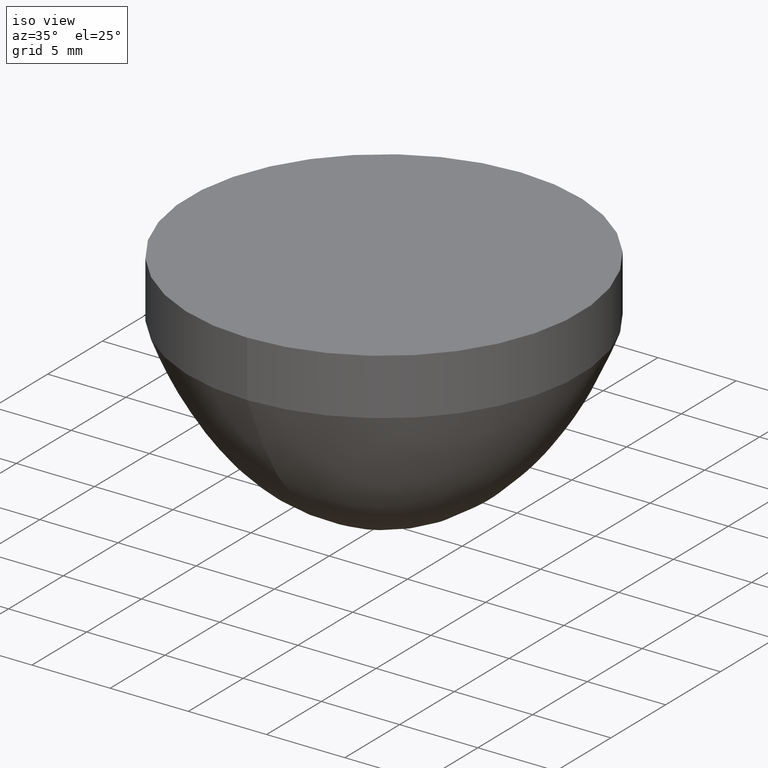
[diagram: clean part render]
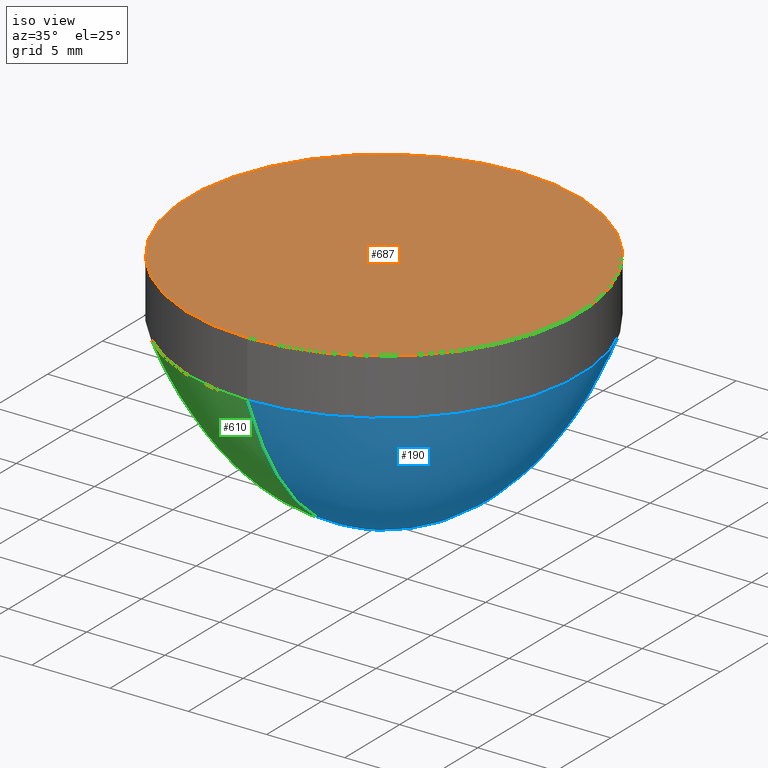
[diagram: same view with three faces highlighted in distinct colors, each labeled with its STEP entity id]
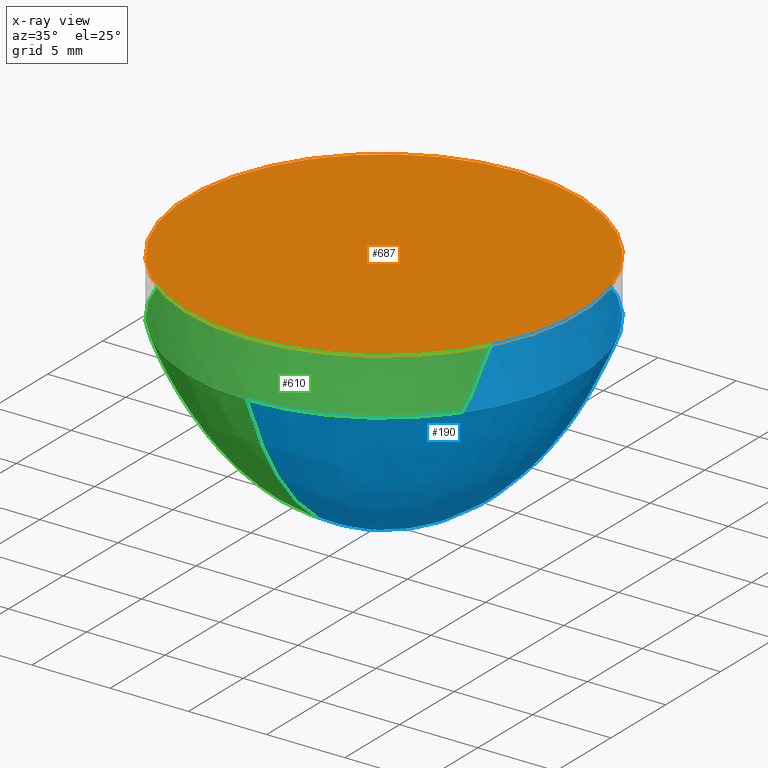
[diagram: x-ray of the same camera — body ghosted, the three highlighted faces saturated]
A machine part, iso view with three faces highlighted in distinct colors.
The next image is the same camera in x-ray (body ghosted, the three faces saturated) — at least one of them is partly hidden behind the body in this view.
Their STEP definitions:

[orange] entity #687 — the highlighted planar face has unit normal (0, 0, 1).
#10 = CARTESIAN_POINT ( 'NONE',  ( 0.000000000000000000, 0.000000000000000000, 14.90000000000000036 ) ) ;
#33 = DIRECTION ( 'NONE',  ( 0.000000000000000000, 1.000000000000000000, 0.000000000000000000 ) ) ;
#55 = AXIS2_PLACEMENT_3D ( 'NONE', #918, #166, #513 ) ;
#73 = ORIENTED_EDGE ( 'NONE', *, *, #335, .F. ) ;
#166 = DIRECTION ( 'NONE',  ( 0.000000000000000000, 0.000000000000000000, -1.000000000000000000 ) ) ;
#174 = FACE_OUTER_BOUND ( 'NONE', #828, .T. ) ;
#229 = VERTEX_POINT ( 'NONE', #934 ) ;
#270 = AXIS2_PLACEMENT_3D ( 'NONE', #862, #623, #33 ) ;
#335 = EDGE_CURVE ( 'NONE', #906, #229, #767, .T. ) ;
#399 = AXIS2_PLACEMENT_3D ( 'NONE', #10, #927, #1085 ) ;
#423 = PLANE ( 'NONE',  #399 ) ;
#513 = DIRECTION ( 'NONE',  ( 0.000000000000000000, 1.000000000000000000, 0.000000000000000000 ) ) ;
#623 = DIRECTION ( 'NONE',  ( 0.000000000000000000, 0.000000000000000000, -1.000000000000000000 ) ) ;
#666 = CIRCLE ( 'NONE', #270, 12.50000000000000000 ) ;
#681 = ORIENTED_EDGE ( 'NONE', *, *, #920, .F. ) ;
#687 = ADVANCED_FACE ( 'NONE', ( #174 ), #423, .T. ) ;
#767 = CIRCLE ( 'NONE', #55, 12.50000000000000000 ) ;
#828 = EDGE_LOOP ( 'NONE', ( #73, #681 ) ) ;
#862 = CARTESIAN_POINT ( 'NONE',  ( 0.000000000000000000, 0.000000000000000000, 14.90000000000000036 ) ) ;
#906 = VERTEX_POINT ( 'NONE', #1027 ) ;
#918 = CARTESIAN_POINT ( 'NONE',  ( 0.000000000000000000, 0.000000000000000000, 14.90000000000000036 ) ) ;
#920 = EDGE_CURVE ( 'NONE', #229, #906, #666, .T. ) ;
#927 = DIRECTION ( 'NONE',  ( 0.000000000000000000, 0.000000000000000000, 1.000000000000000000 ) ) ;
#934 = CARTESIAN_POINT ( 'NONE',  ( 1.530808498934191521E-15, -12.50000000000000000, 14.90000000000000036 ) ) ;
#1027 = CARTESIAN_POINT ( 'NONE',  ( 0.000000000000000000, 12.50000000000000000, 14.90000000000000036 ) ) ;
#1085 = DIRECTION ( 'NONE',  ( 1.000000000000000000, 0.000000000000000000, 0.000000000000000000 ) ) ;

[blue] entity #190 — the highlighted face is a freeform B-spline surface patch.
#2 = CARTESIAN_POINT ( 'NONE',  ( -1.355403358431311319E-15, -11.06770833333330017, 8.101691569829780448 ) ) ;
#3 = CARTESIAN_POINT ( 'NONE',  ( 20.05208333333339965, 10.02604166666669450, 6.330833617079840714 ) ) ;
#7 = CARTESIAN_POINT ( 'NONE',  ( 4.145939684613427030E-16, 1.692708333333329929, 0.1522185181524380038 ) ) ;
#8 = CARTESIAN_POINT ( 'NONE',  ( 2.551347498223660753E-15, 10.41666666666670160, 6.951660177979030131 ) ) ;
#12 = CARTESIAN_POINT ( 'NONE',  ( 0.000000000000000000, 0.000000000000000000, 0.000000000000000000 ) ) ;
#13 = CARTESIAN_POINT ( 'NONE',  ( 2.519455654495848970E-15, 10.28645833333330017, 6.739496539935560193 ) ) ;
#15 = CARTESIAN_POINT ( 'NONE',  ( 3.508102810057530577E-16, 1.432291666666670071, 0.1086030754907159890 ) ) ;
#16 = CARTESIAN_POINT ( 'NONE',  ( 17.44791666666666075, 8.723958333333326820, 4.567956081372781085 ) ) ;
#21 = CARTESIAN_POINT ( 'NONE',  ( -6.378368745559127230E-17, -0.5208333333333330373, 0.01354328854655280009 ) ) ;
#22 = CARTESIAN_POINT ( 'NONE',  ( 13.02083333333333748, 6.510416666666666075, 2.400284506880939528 ) ) ;
#28 = CARTESIAN_POINT ( 'NONE',  ( 11.97916666666666075, 5.989583333333327708, 2.010765930553359837 ) ) ;
#30 = CARTESIAN_POINT ( 'NONE',  ( -7.972960931948917666E-16, -6.510416666666669627, 2.400284506880939972 ) ) ;
#32 = CARTESIAN_POINT ( 'NONE',  ( -6.856746401476061403E-16, -5.598958333333329485, 1.744726139372029916 ) ) ;
#40 = CARTESIAN_POINT ( 'NONE',  ( 1.403241124023009470E-15, 5.729166666666669627, 1.830968494797829971 ) ) ;
#42 = CARTESIAN_POINT ( 'NONE',  ( 23.17708333333339610, -11.58854166666670160, 9.142246697522049104 ) ) ;
#44 = CARTESIAN_POINT ( 'NONE',  ( -2.710806716862634373E-16, -2.213541666666669627, 0.2616700155553479679 ) ) ;
#45 = CARTESIAN_POINT ( 'NONE',  ( 10.41666666666666075, 5.208333333333327708, 1.500032559886970152 ) ) ;
#51 = CARTESIAN_POINT ( 'NONE',  ( 8.854166666666660745, 4.427083333333327708, 1.071522926882350069 ) ) ;
#56 = CARTESIAN_POINT ( 'NONE',  ( -4.464858121891388568E-16, -3.645833333333330373, 0.7198431881136868604 ) ) ;
#62 = CARTESIAN_POINT ( 'NONE',  ( -2.232429060945700200E-16, -1.822916666666670071, 0.1767880958658080148 ) ) ;
#63 = CARTESIAN_POINT ( 'NONE',  ( -1.371349280295217211E-15, -11.19791666666669983, 8.350800092033551891 ) ) ;
#67 = CARTESIAN_POINT ( 'NONE',  ( 9.635416666666657193, -4.817708333333331261, 1.275870045916119855 ) ) ;
#69 = CARTESIAN_POINT ( 'NONE',  ( 0.000000000000000000, 3.255208333333329929, 0.5714833306473580121 ) ) ;
#71 = CARTESIAN_POINT ( 'NONE',  ( 5.729166666666658969, -2.864583333333330817, 0.4408698736677280072 ) ) ;
#75 = CARTESIAN_POINT ( 'NONE',  ( 0.000000000000000000, 2.213541666666669627, 0.2616700155553479679 ) ) ;
#78 = CARTESIAN_POINT ( 'NONE',  ( 1.302083333333334147, 0.6510416666666667407, 0.02167194779994750103 ) ) ;
#79 = VERTEX_POINT ( 'NONE', #557 ) ;
#81 = CARTESIAN_POINT ( 'NONE',  ( 0.000000000000000000, 5.338541666666670515, 1.579258093910859806 ) ) ;
#83 = CARTESIAN_POINT ( 'NONE',  ( 3.189184372779557206E-16, 1.302083333333329929, 0.08955723210775680398 ) ) ;
#84 = CARTESIAN_POINT ( 'NONE',  ( 22.13541666666659680, -11.06770833333330373, 8.101691569829780448 ) ) ;
#86 = CARTESIAN_POINT ( 'NONE',  ( 0.000000000000000000, 4.817708333333330373, 1.275870045916120077 ) ) ;
#88 = CARTESIAN_POINT ( 'NONE',  ( 3.385416666666659413, 1.692708333333329040, 0.1522185181524379760 ) ) ;
#89 = CARTESIAN_POINT ( 'NONE',  ( -1.355403358431311319E-15, -11.06770833333330017, 8.101691569829780448 ) ) ;
#92 = CARTESIAN_POINT ( 'NONE',  ( 0.000000000000000000, 2.473958333333330373, 0.3276472303210150039 ) ) ;
#94 = CARTESIAN_POINT ( 'NONE',  ( -1.594592186389779034E-17, -0.1302083333333330095, 0.000000000000000000 ) ) ;
#95 = CARTESIAN_POINT ( 'NONE',  ( -1.275673749111830376E-15, -10.41666666666670160, 6.951660177979030131 ) ) ;
#96 = DIRECTION ( 'NONE',  ( 0.000000000000000000, 0.000000000000000000, 1.000000000000000000 ) ) ;
#98 = CARTESIAN_POINT ( 'NONE',  ( -1.275673749111830623E-16, -1.041666666666670071, 0.05694112109779050218 ) ) ;
#99 = CARTESIAN_POINT ( 'NONE',  ( -1.227835983520136762E-15, -10.02604166666669983, 6.330833617079840714 ) ) ;
#102 = CARTESIAN_POINT ( 'NONE',  ( -1.068376764881154168E-15, -8.723958333333330373, 4.567956081372781085 ) ) ;
#104 = CARTESIAN_POINT ( 'NONE',  ( 21.61458333333339610, -10.80729166666670338, 7.622995394326639307 ) ) ;
#109 = CARTESIAN_POINT ( 'NONE',  ( 0.000000000000000000, 0.000000000000000000, 0.000000000000000000 ) ) ;
#112 = CARTESIAN_POINT ( 'NONE',  ( 13.02083333333333393, -6.510416666666671404, 2.400284506880939528 ) ) ;
#115 = CARTESIAN_POINT ( 'NONE',  ( -5.899991089642192072E-16, -4.817708333333330373, 1.275870045916120077 ) ) ;
#117 = CARTESIAN_POINT ( 'NONE',  ( 13.80208333333333748, 6.901041666666666075, 2.719964787174330212 ) ) ;
#119 = CARTESIAN_POINT ( 'NONE',  ( -1.211890061656234420E-15, -9.895833333333328596, 6.134336302575280619 ) ) ;
#121 = CARTESIAN_POINT ( 'NONE',  ( 12.23958333333333748, -6.119791666666672292, 2.104320822872100205 ) ) ;
#123 = CARTESIAN_POINT ( 'NONE',  ( -1.451078889614698351E-15, -11.84895833333330017, 9.709714523625489591 ) ) ;
#130 = CARTESIAN_POINT ( 'NONE',  ( 13.54166666666665542, -6.770833333333332149, 2.610726926319740127 ) ) ;
#135 = CARTESIAN_POINT ( 'NONE',  ( 15.36458333333333393, -7.682291666666671404, 3.435707145917979766 ) ) ;
#139 = CARTESIAN_POINT ( 'NONE',  ( 7.291666666666658969, -3.645833333333331261, 0.7198431881136869714 ) ) ;
#145 = CARTESIAN_POINT ( 'NONE',  ( -2.710806716862634373E-16, -2.213541666666669627, 0.2616700155553479679 ) ) ;
#150 = CARTESIAN_POINT ( 'NONE',  ( 7.552083333333336590, -3.776041666666670515, 0.7732983923595799780 ) ) ;
#151 = CARTESIAN_POINT ( 'NONE',  ( -1.403241124023004934E-15, -11.45833333333330195, 8.871079594921690514 ) ) ;
#155 = CARTESIAN_POINT ( 'NONE',  ( -5.899991089642192072E-16, -4.817708333333330373, 1.275870045916120077 ) ) ;
#156 = CARTESIAN_POINT ( 'NONE',  ( 3.061616997868383043E-15, 12.50000000000000000, 11.29451095824919982 ) ) ;
#158 = CARTESIAN_POINT ( 'NONE',  ( 0.000000000000000000, 2.604166666666670071, 0.3634682531362019575 ) ) ;
#161 = CARTESIAN_POINT ( 'NONE',  ( -1.498916655206391965E-15, -12.23958333333330017, 10.62747270559749957 ) ) ;
#162 = CARTESIAN_POINT ( 'NONE',  ( 23.69791666666659680, 11.84895833333329485, 9.709714523625487814 ) ) ;
#164 = CARTESIAN_POINT ( 'NONE',  ( 0.000000000000000000, 6.770833333333330373, 2.610726926319740127 ) ) ;
#167 = CARTESIAN_POINT ( 'NONE',  ( 19.01041666666666075, 9.505208333333325044, 5.573230742455339559 ) ) ;
#169 = CARTESIAN_POINT ( 'NONE',  ( 0.000000000000000000, 9.244791666666669627, 5.221573973019829396 ) ) ;
#171 = CARTESIAN_POINT ( 'NONE',  ( 1.822916666666665630, -0.9114583333333333703, 0.04337086924131700050 ) ) ;
#172 = CARTESIAN_POINT ( 'NONE',  ( -1.084322686745052763E-15, -8.854166666666669627, 4.725412347306400918 ) ) ;
#176 = CARTESIAN_POINT ( 'NONE',  ( 2.864583333333339699, -1.432291666666670515, 0.1086030754907159890 ) ) ;
#177 = CARTESIAN_POINT ( 'NONE',  ( 19.79166666666665719, -9.895833333333330373, 6.134336302575280619 ) ) ;
#183 = CARTESIAN_POINT ( 'NONE',  ( 1.041666666666665853, -0.5208333333333330373, 0.01354328854655280009 ) ) ;
#184 = CARTESIAN_POINT ( 'NONE',  ( 18.22916666666665719, -9.114583333333332149, 5.052221790468919949 ) ) ;
#187 = VERTEX_POINT ( 'NONE', #407 ) ;
#189 = CARTESIAN_POINT ( 'NONE',  ( -1.754051405028765288E-16, -1.432291666666670071, 0.1086030754907159890 ) ) ;
#190 = ADVANCED_FACE ( 'NONE', ( #901 ), #322, .T. ) ;
#191 = CARTESIAN_POINT ( 'NONE',  ( -1.116214530472847586E-15, -9.114583333333330373, 5.052221790468919949 ) ) ;
#197 = CARTESIAN_POINT ( 'NONE',  ( 1.945402467395533879E-15, 7.942708333333329485, 3.698633919743819831 ) ) ;
#198 = CARTESIAN_POINT ( 'NONE',  ( 0.000000000000000000, 1.302083333333329929, 0.08955723210775680398 ) ) ;
#199 = CIRCLE ( 'NONE', #419, 12.50000000000000000 ) ;
#203 = CARTESIAN_POINT ( 'NONE',  ( -6.059450308281178018E-16, -4.947916666666669627, 1.348338470967810121 ) ) ;
#205 = CARTESIAN_POINT ( 'NONE',  ( 15.10416666666665719, 7.552083333333325932, 3.309020994085449807 ) ) ;
#207 = CARTESIAN_POINT ( 'NONE',  ( -3.986480465974452916E-16, -3.255208333333329929, 0.5714833306473580121 ) ) ;
#208 = CARTESIAN_POINT ( 'NONE',  ( -8.770257025143803023E-16, -7.161458333333330373, 2.946913466283350047 ) ) ;
#210 = EDGE_LOOP ( 'NONE', ( #271, #727, #492 ) ) ;
#212 = CARTESIAN_POINT ( 'NONE',  ( -2.551347498223648427E-16, -2.083333333333330373, 0.2315138585061019827 ) ) ;
#214 = CARTESIAN_POINT ( 'NONE',  ( 10.67708333333333925, -5.338541666666672292, 1.579258093910859806 ) ) ;
#219 = CARTESIAN_POINT ( 'NONE',  ( 9.895833333333339255, -4.947916666666670515, 1.348338470967810121 ) ) ;
#224 = CARTESIAN_POINT ( 'NONE',  ( -3.986480465974452916E-16, -3.255208333333329929, 0.5714833306473580121 ) ) ;
#228 = CARTESIAN_POINT ( 'NONE',  ( 9.895833333333339255, 4.947916666666666963, 1.348338470967810121 ) ) ;
#235 = CARTESIAN_POINT ( 'NONE',  ( 1.116214530472848769E-15, 4.557291666666669627, 1.137462219741040226 ) ) ;
#237 = CARTESIAN_POINT ( 'NONE',  ( -1.419187045886910825E-15, -11.58854166666669983, 9.142246697522050880 ) ) ;
#241 = CARTESIAN_POINT ( 'NONE',  ( 5.208333333333339255, -2.604166666666670515, 0.3634682531362019575 ) ) ;
#244 = CARTESIAN_POINT ( 'NONE',  ( 0.000000000000000000, 2.994791666666670071, 0.4824504285186939634 ) ) ;
#247 = CARTESIAN_POINT ( 'NONE',  ( -3.189184372779570025E-16, -2.604166666666670071, 0.3634682531362019575 ) ) ;
#248 = CARTESIAN_POINT ( 'NONE',  ( 23.95833333333339610, 11.97916666666669627, 10.00601041178940065 ) ) ;
#250 = CARTESIAN_POINT ( 'NONE',  ( 0.000000000000000000, 1.692708333333329929, 0.1522185181524380038 ) ) ;
#252 = CARTESIAN_POINT ( 'NONE',  ( 4.464858121891400401E-16, 1.822916666666670071, 0.1767880958658080148 ) ) ;
#254 = CARTESIAN_POINT ( 'NONE',  ( -1.259727827247924485E-15, -10.28645833333330017, 6.739496539935560193 ) ) ;
#256 = CARTESIAN_POINT ( 'NONE',  ( 0.000000000000000000, 10.02604166666669983, 6.330833617079840714 ) ) ;
#259 = CARTESIAN_POINT ( 'NONE',  ( -1.594592186389778603E-16, -1.302083333333329929, 0.08955723210775680398 ) ) ;
#260 = CARTESIAN_POINT ( 'NONE',  ( 2.455671967040273524E-15, 10.02604166666669983, 6.330833617079840714 ) ) ;
#262 = CARTESIAN_POINT ( 'NONE',  ( 0.000000000000000000, 4.947916666666669627, 1.348338470967810121 ) ) ;
#264 = CARTESIAN_POINT ( 'NONE',  ( -1.227835983520136762E-15, -10.02604166666669983, 6.330833617079840714 ) ) ;
#265 = CARTESIAN_POINT ( 'NONE',  ( -1.164052296064541200E-15, -9.505208333333330373, 5.573230742455339559 ) ) ;
#266 = CARTESIAN_POINT ( 'NONE',  ( 0.000000000000000000, 2.864583333333329929, 0.4408698736677280627 ) ) ;
#269 = CARTESIAN_POINT ( 'NONE',  ( 19.01041666666665719, -9.505208333333332149, 5.573230742455339559 ) ) ;
#271 = ORIENTED_EDGE ( 'NONE', *, *, #1082, .F. ) ;
#273 = CARTESIAN_POINT ( 'NONE',  ( 2.864583333333340143, 1.432291666666669405, 0.1086030754907159890 ) ) ;
#274 = CARTESIAN_POINT ( 'NONE',  ( 2.615131185679235804E-15, 10.67708333333330017, 7.393410842127540405 ) ) ;
#278 = CARTESIAN_POINT ( 'NONE',  ( -5.421613433725257899E-16, -4.427083333333329485, 1.071522926882350069 ) ) ;
#279 = CARTESIAN_POINT ( 'NONE',  ( 14.32291666666665897, 7.161458333333326820, 2.946913466283350491 ) ) ;
#280 = CARTESIAN_POINT ( 'NONE',  ( 0.000000000000000000, 0.000000000000000000, 11.29451095824919982 ) ) ;
#282 = CARTESIAN_POINT ( 'NONE',  ( -1.116214530472847586E-15, -9.114583333333330373, 5.052221790468919949 ) ) ;
#284 = CARTESIAN_POINT ( 'NONE',  ( 11.45833333333333748, -5.729166666666671404, 1.830968494797829971 ) ) ;
#287 = CARTESIAN_POINT ( 'NONE',  ( -6.378368745559128216E-16, -5.208333333333330373, 1.500032559886969930 ) ) ;
#289 = CARTESIAN_POINT ( 'NONE',  ( 1.977294311123331857E-15, 8.072916666666671404, 3.834874028809350133 ) ) ;
#290 = CARTESIAN_POINT ( 'NONE',  ( 0.000000000000000000, 1.041666666666670071, 0.05694112109779050218 ) ) ;
#291 = CARTESIAN_POINT ( 'NONE',  ( 3.029725154140595714E-15, 12.36979166666670160, 10.95263310302819804 ) ) ;
#293 = CARTESIAN_POINT ( 'NONE',  ( -8.770257025143803023E-16, -7.161458333333330373, 2.946913466283350047 ) ) ;
#295 = CARTESIAN_POINT ( 'NONE',  ( 1.690267717573170565E-15, 6.901041666666669627, 2.719964787174330212 ) ) ;
#300 = CARTESIAN_POINT ( 'NONE',  ( -7.813501713309931720E-16, -6.380208333333329485, 2.299080224759610047 ) ) ;
#302 = CARTESIAN_POINT ( 'NONE',  ( 15.10416666666665542, -7.552083333333331261, 3.309020994085449807 ) ) ;
#307 = CARTESIAN_POINT ( 'NONE',  ( -5.581072652364243845E-16, -4.557291666666669627, 1.137462219741040226 ) ) ;
#310 = CARTESIAN_POINT ( 'NONE',  ( 4.166666666666659857, -2.083333333333330817, 0.2315138585061019827 ) ) ;
#313 = CARTESIAN_POINT ( 'NONE',  ( 3.645833333333338810, -1.822916666666670737, 0.1767880958658080148 ) ) ;
#317 = CARTESIAN_POINT ( 'NONE',  ( 8.072916666666658969, -4.036458333333331261, 0.8863636292049710264 ) ) ;
#321 = CARTESIAN_POINT ( 'NONE',  ( 0.000000000000000000, 10.80729166666669983, 7.622995394326639307 ) ) ;
#322 =( BOUNDED_SURFACE ( )  B_SPLINE_SURFACE ( 3, 3, ( 
 ( #911, #810, #993, #156 ),
 ( #958, #486, #457, #291 ),
 ( #873, #1079, #401, #707 ),
 ( #739, #325, #248, #657 ),
 ( #123, #572, #162, #788 ),
 ( #237, #42, #374, #986 ),
 ( #151, #964, #896, #478 ),
 ( #63, #1068, #604, #679 ),
 ( #89, #84, #337, #421 ),
 ( #846, #104, #413, #348 ),
 ( #756, #1006, #434, #274 ),
 ( #95, #925, #834, #8 ),
 ( #254, #663, #426, #13 ),
 ( #99, #582, #3, #260 ),
 ( #1020, #177, #576, #750 ),
 ( #919, #431, #939, #761 ),
 ( #265, #269, #167, #599 ),
 ( #670, #1011, #587, #936 ),
 ( #191, #184, #351, #514 ),
 ( #172, #850, #764, #518 ),
 ( #503, #839, #16, #498 ),
 ( #855, #343, #684, #330 ),
 ( #675, #1017, #1026, #593 ),
 ( #930, #508, #548, #289 ),
 ( #689, #768, #705, #197 ),
 ( #1048, #135, #451, #1030 ),
 ( #962, #302, #205, #871 ),
 ( #633, #354, #628, #944 ),
 ( #208, #1043, #279, #611 ),
 ( #523, #884, #117, #295 ),
 ( #699, #130, #358, #861 ),
 ( #622, #112, #22, #364 ),
 ( #956, #444, #1037, #535 ),
 ( #694, #121, #968, #371 ),
 ( #866, #773, #28, #778 ),
 ( #455, #284, #616, #40 ),
 ( #32, #951, #530, #1053 ),
 ( #784, #214, #541, #877 ),
 ( #463, #792, #45, #377 ),
 ( #711, #219, #228, #975 ),
 ( #155, #67, #645, #571 ),
 ( #307, #905, #324, #235 ),
 ( #726, #900, #51, #1072 ),
 ( #551, #804, #889, #563 ),
 ( #656, #317, #820, #651 ),
 ( #473, #150, #992, #998 ),
 ( #56, #139, #485, #637 ),
 ( #381, #477, #910, #469 ),
 ( #224, #731, #481, #567 ),
 ( #815, #1078, #1058, #390 ),
 ( #1066, #71, #738, #980 ),
 ( #247, #241, #386, #895 ),
 ( #722, #555, #394, #797 ),
 ( #145, #715, #400, #984 ),
 ( #1062, #310, #641, #809 ),
 ( #62, #313, #763, #252 ),
 ( #845, #429, #88, #7 ),
 ( #1005, #176, #273, #15 ),
 ( #259, #507, #924, #83 ),
 ( #98, #350, #597, #755 ),
 ( #490, #171, #929, #832 ),
 ( #1084, #329, #78, #502 ),
 ( #603, #183, #661, #425 ),
 ( #1024, #342, #678, #405 ),
 ( #94, #579, #749, #760 ),
 ( #838, #745, #12, #347 ) ),
 .UNSPECIFIED., .F., .F., .T. ) 
 B_SPLINE_SURFACE_WITH_KNOTS ( ( 4, 2, 2, 2, 2, 2, 2, 2, 2, 2, 2, 2, 2, 2, 2, 2, 2, 2, 2, 2, 2, 2, 2, 2, 2, 2, 2, 2, 2, 2, 2, 2, 4 ),
 ( 4, 4 ),
 ( -1.000000000000000000, -0.9687500000000000000, -0.9375000000000000000, -0.9062500000000000000, -0.8750000000000000000, -0.8437500000000000000, -0.8125000000000000000, -0.7812500000000000000, -0.7500000000000000000, -0.7187500000000000000, -0.6875000000000000000, -0.6562500000000000000, -0.6250000000000000000, -0.5937500000000000000, -0.5625000000000000000, -0.5312500000000000000, -0.5000000000000000000, -0.4687500000000000000, -0.4375000000000000000, -0.4062500000000000000, -0.3750000000000000000, -0.3437500000000000000, -0.3125000000000000000, -0.2812500000000000000, -0.2500000000000000000, -0.2187500000000000000, -0.1875000000000000000, -0.1562500000000000000, -0.1250000000000000000, -0.09375000000000000000, -0.06250000000000000000, -0.03125000000000000000, 0.000000000000000000 ),
 ( 0.000000000000000000, 1.000000000000000000 ),
 .UNSPECIFIED. ) 
 GEOMETRIC_REPRESENTATION_ITEM ( )  RATIONAL_B_SPLINE_SURFACE ( (
 ( 1.000000000000000000, 0.3333333333333334259, 0.3333333333333334259, 1.000000000000000000),
 ( 1.000000000000000000, 0.3333333333333334259, 0.3333333333333334259, 1.000000000000000000),
 ( 1.000000000000000000, 0.3333333333333334259, 0.3333333333333334259, 1.000000000000000000),
 ( 1.000000000000000000, 0.3333333333333334259, 0.3333333333333334259, 1.000000000000000000),
 ( 1.000000000000000000, 0.3333333333333334259, 0.3333333333333334259, 1.000000000000000000),
 ( 1.000000000000000000, 0.3333333333333334259, 0.3333333333333334259, 1.000000000000000000),
 ( 1.000000000000000000, 0.3333333333333334259, 0.3333333333333334259, 1.000000000000000000),
 ( 1.000000000000000000, 0.3333333333333334259, 0.3333333333333334259, 1.000000000000000000),
 ( 1.000000000000000000, 0.3333333333333334259, 0.3333333333333334259, 1.000000000000000000),
 ( 1.000000000000000000, 0.3333333333333334259, 0.3333333333333334259, 1.000000000000000000),
 ( 1.000000000000000000, 0.3333333333333334259, 0.3333333333333334259, 1.000000000000000000),
 ( 1.000000000000000000, 0.3333333333333334259, 0.3333333333333334259, 1.000000000000000000),
 ( 1.000000000000000000, 0.3333333333333334259, 0.3333333333333334259, 1.000000000000000000),
 ( 1.000000000000000000, 0.3333333333333334259, 0.3333333333333334259, 1.000000000000000000),
 ( 1.000000000000000000, 0.3333333333333334259, 0.3333333333333334259, 1.000000000000000000),
 ( 1.000000000000000000, 0.3333333333333334259, 0.3333333333333334259, 1.000000000000000000),
 ( 1.000000000000000000, 0.3333333333333334259, 0.3333333333333334259, 1.000000000000000000),
 ( 1.000000000000000000, 0.3333333333333334259, 0.3333333333333334259, 1.000000000000000000),
 ( 1.000000000000000000, 0.3333333333333334259, 0.3333333333333334259, 1.000000000000000000),
 ( 1.000000000000000000, 0.3333333333333334259, 0.3333333333333334259, 1.000000000000000000),
 ( 1.000000000000000000, 0.3333333333333334259, 0.3333333333333334259, 1.000000000000000000),
 ( 1.000000000000000000, 0.3333333333333334259, 0.3333333333333334259, 1.000000000000000000),
 ( 1.000000000000000000, 0.3333333333333334259, 0.3333333333333334259, 1.000000000000000000),
 ( 1.000000000000000000, 0.3333333333333334259, 0.3333333333333334259, 1.000000000000000000),
 ( 1.000000000000000000, 0.3333333333333334259, 0.3333333333333334259, 1.000000000000000000),
 ( 1.000000000000000000, 0.3333333333333334259, 0.3333333333333334259, 1.000000000000000000),
 ( 1.000000000000000000, 0.3333333333333334259, 0.3333333333333334259, 1.000000000000000000),
 ( 1.000000000000000000, 0.3333333333333334259, 0.3333333333333334259, 1.000000000000000000),
 ( 1.000000000000000000, 0.3333333333333334259, 0.3333333333333334259, 1.000000000000000000),
 ( 1.000000000000000000, 0.3333333333333334259, 0.3333333333333334259, 1.000000000000000000),
 ( 1.000000000000000000, 0.3333333333333334259, 0.3333333333333334259, 1.000000000000000000),
 ( 1.000000000000000000, 0.3333333333333334259, 0.3333333333333334259, 1.000000000000000000),
 ( 1.000000000000000000, 0.3333333333333334259, 0.3333333333333334259, 1.000000000000000000),
 ( 1.000000000000000000, 0.3333333333333334259, 0.3333333333333334259, 1.000000000000000000),
 ( 1.000000000000000000, 0.3333333333333334259, 0.3333333333333334259, 1.000000000000000000),
 ( 1.000000000000000000, 0.3333333333333334259, 0.3333333333333334259, 1.000000000000000000),
 ( 1.000000000000000000, 0.3333333333333334259, 0.3333333333333334259, 1.000000000000000000),
 ( 1.000000000000000000, 0.3333333333333334259, 0.3333333333333334259, 1.000000000000000000),
 ( 1.000000000000000000, 0.3333333333333334259, 0.3333333333333334259, 1.000000000000000000),
 ( 1.000000000000000000, 0.3333333333333334259, 0.3333333333333334259, 1.000000000000000000),
 ( 1.000000000000000000, 0.3333333333333334259, 0.3333333333333334259, 1.000000000000000000),
 ( 1.000000000000000000, 0.3333333333333334259, 0.3333333333333334259, 1.000000000000000000),
 ( 1.000000000000000000, 0.3333333333333334259, 0.3333333333333334259, 1.000000000000000000),
 ( 1.000000000000000000, 0.3333333333333334259, 0.3333333333333334259, 1.000000000000000000),
 ( 1.000000000000000000, 0.3333333333333334259, 0.3333333333333334259, 1.000000000000000000),
 ( 1.000000000000000000, 0.3333333333333334259, 0.3333333333333334259, 1.000000000000000000),
 ( 1.000000000000000000, 0.3333333333333334259, 0.3333333333333334259, 1.000000000000000000),
 ( 1.000000000000000000, 0.3333333333333334259, 0.3333333333333334259, 1.000000000000000000),
 ( 1.000000000000000000, 0.3333333333333334259, 0.3333333333333334259, 1.000000000000000000),
 ( 1.000000000000000000, 0.3333333333333334259, 0.3333333333333334259, 1.000000000000000000),
 ( 1.000000000000000000, 0.3333333333333334259, 0.3333333333333334259, 1.000000000000000000),
 ( 1.000000000000000000, 0.3333333333333334259, 0.3333333333333334259, 1.000000000000000000),
 ( 1.000000000000000000, 0.3333333333333334259, 0.3333333333333334259, 1.000000000000000000),
 ( 1.000000000000000000, 0.3333333333333334259, 0.3333333333333334259, 1.000000000000000000),
 ( 1.000000000000000000, 0.3333333333333334259, 0.3333333333333334259, 1.000000000000000000),
 ( 1.000000000000000000, 0.3333333333333334259, 0.3333333333333334259, 1.000000000000000000),
 ( 1.000000000000000000, 0.3333333333333334259, 0.3333333333333334259, 1.000000000000000000),
 ( 1.000000000000000000, 0.3333333333333334259, 0.3333333333333334259, 1.000000000000000000),
 ( 1.000000000000000000, 0.3333333333333334259, 0.3333333333333334259, 1.000000000000000000),
 ( 1.000000000000000000, 0.3333333333333334259, 0.3333333333333334259, 1.000000000000000000),
 ( 1.000000000000000000, 0.3333333333333334259, 0.3333333333333334259, 1.000000000000000000),
 ( 1.000000000000000000, 0.3333333333333334259, 0.3333333333333334259, 1.000000000000000000),
 ( 1.000000000000000000, 0.3333333333333334259, 0.3333333333333334259, 1.000000000000000000),
 ( 1.000000000000000000, 0.3333333333333334259, 0.3333333333333334259, 1.000000000000000000),
 ( 1.000000000000000000, 0.3333333333333334259, 0.3333333333333334259, 1.000000000000000000),
 ( 1.000000000000000000, 0.3333333333333334259, 0.3333333333333334259, 1.000000000000000000) ) ) 
 REPRESENTATION_ITEM ( '' )  SURFACE ( )  );
#324 = CARTESIAN_POINT ( 'NONE',  ( 9.114583333333339255, 4.557291666666666963, 1.137462219741040004 ) ) ;
#325 = CARTESIAN_POINT ( 'NONE',  ( 23.95833333333339255, -11.97916666666670338, 10.00601041178940065 ) ) ;
#327 = CARTESIAN_POINT ( 'NONE',  ( 0.000000000000000000, 12.36979166666670160, 10.95263310302819804 ) ) ;
#329 = CARTESIAN_POINT ( 'NONE',  ( 1.302083333333333925, -0.6510416666666671848, 0.02167194779994750103 ) ) ;
#330 = CARTESIAN_POINT ( 'NONE',  ( 2.072969842306719086E-15, 8.463541666666671404, 4.264037605500339723 ) ) ;
#332 = CARTESIAN_POINT ( 'NONE',  ( 0.000000000000000000, 11.84895833333330017, 9.709714523625489591 ) ) ;
#336 = CARTESIAN_POINT ( 'NONE',  ( -1.323511514703523794E-15, -10.80729166666669983, 7.622995394326639307 ) ) ;
#337 = CARTESIAN_POINT ( 'NONE',  ( 22.13541666666660390, 11.06770833333329662, 8.101691569829780448 ) ) ;
#340 = CARTESIAN_POINT ( 'NONE',  ( 0.000000000000000000, 12.23958333333330017, 10.62747270559749957 ) ) ;
#342 = CARTESIAN_POINT ( 'NONE',  ( 0.5208333333333339255, -0.2604166666666670737, 0.002707312090017010252 ) ) ;
#343 = CARTESIAN_POINT ( 'NONE',  ( 16.92708333333333925, -8.463541666666673180, 4.264037605500339723 ) ) ;
#344 = CARTESIAN_POINT ( 'NONE',  ( 0.000000000000000000, 10.28645833333330017, 6.739496539935560193 ) ) ;
#347 = CARTESIAN_POINT ( 'NONE',  ( 0.000000000000000000, 0.000000000000000000, 0.000000000000000000 ) ) ;
#348 = CARTESIAN_POINT ( 'NONE',  ( 2.647023029407047587E-15, 10.80729166666669983, 7.622995394326639307 ) ) ;
#350 = CARTESIAN_POINT ( 'NONE',  ( 2.083333333333339699, -1.041666666666670293, 0.05694112109779050218 ) ) ;
#351 = CARTESIAN_POINT ( 'NONE',  ( 18.22916666666666430, 9.114583333333326820, 5.052221790468919949 ) ) ;
#353 = CARTESIAN_POINT ( 'NONE',  ( -8.929716243782786997E-16, -7.291666666666670515, 3.064623946707679902 ) ) ;
#354 = CARTESIAN_POINT ( 'NONE',  ( 14.58333333333333393, -7.291666666666672292, 3.064623946707680346 ) ) ;
#358 = CARTESIAN_POINT ( 'NONE',  ( 13.54166666666665897, 6.770833333333326820, 2.610726926319740127 ) ) ;
#362 = CARTESIAN_POINT ( 'NONE',  ( -9.408093899699721169E-16, -7.682291666666669627, 3.435707145917980210 ) ) ;
#364 = CARTESIAN_POINT ( 'NONE',  ( 1.594592186389783533E-15, 6.510416666666669627, 2.400284506880939972 ) ) ;
#365 = CARTESIAN_POINT ( 'NONE',  ( 0.000000000000000000, 0.1302083333333330095, 0.000000000000000000 ) ) ;
#369 = CARTESIAN_POINT ( 'NONE',  ( -1.036484921153359543E-15, -8.463541666666671404, 4.264037605500339723 ) ) ;
#371 = CARTESIAN_POINT ( 'NONE',  ( 1.498916655206396699E-15, 6.119791666666670515, 2.104320822872100205 ) ) ;
#374 = CARTESIAN_POINT ( 'NONE',  ( 23.17708333333339965, 11.58854166666669627, 9.142246697522049104 ) ) ;
#377 = CARTESIAN_POINT ( 'NONE',  ( 1.275673749111825643E-15, 5.208333333333330373, 1.500032559886969930 ) ) ;
#381 = CARTESIAN_POINT ( 'NONE',  ( -4.145939684613439356E-16, -3.385416666666669627, 0.6189356258842380054 ) ) ;
#386 = CARTESIAN_POINT ( 'NONE',  ( 5.208333333333340143, 2.604166666666668739, 0.3634682531362019575 ) ) ;
#390 = CARTESIAN_POINT ( 'NONE',  ( 7.335124057393009380E-16, 2.994791666666670071, 0.4824504285186939634 ) ) ;
#394 = CARTESIAN_POINT ( 'NONE',  ( 4.947916666666659857, 2.473958333333328596, 0.3276472303210150039 ) ) ;
#397 = CARTESIAN_POINT ( 'NONE',  ( 0.000000000000000000, 7.682291666666669627, 3.435707145917980210 ) ) ;
#400 = CARTESIAN_POINT ( 'NONE',  ( 4.427083333333339255, 2.213541666666668295, 0.2616700155553479679 ) ) ;
#401 = CARTESIAN_POINT ( 'NONE',  ( 24.47916666666660035, 12.23958333333329485, 10.62747270559749957 ) ) ;
#403 = CARTESIAN_POINT ( 'NONE',  ( 0.000000000000000000, 2.083333333333330373, 0.2315138585061019827 ) ) ;
#405 = CARTESIAN_POINT ( 'NONE',  ( 6.378368745559140789E-17, 0.2604166666666670182, 0.002707312090017010252 ) ) ;
#407 = CARTESIAN_POINT ( 'NONE',  ( 1.530808498934191521E-15, -12.50000000000000000, 11.29451095824919982 ) ) ;
#409 = CARTESIAN_POINT ( 'NONE',  ( 0.000000000000000000, 9.505208333333330373, 5.573230742455339559 ) ) ;
#410 = EDGE_CURVE ( 'NONE', #187, #607, #592, .T. ) ;
#412 = CARTESIAN_POINT ( 'NONE',  ( -1.403241124023004934E-15, -11.45833333333330195, 8.871079594921690514 ) ) ;
#413 = CARTESIAN_POINT ( 'NONE',  ( 21.61458333333339965, 10.80729166666669450, 7.622995394326639307 ) ) ;
#416 = CARTESIAN_POINT ( 'NONE',  ( 0.000000000000000000, 4.166666666666670515, 0.9459735864390189652 ) ) ;
#418 = CARTESIAN_POINT ( 'NONE',  ( -1.419187045886910825E-15, -11.58854166666669983, 9.142246697522050880 ) ) ;
#419 = AXIS2_PLACEMENT_3D ( 'NONE', #280, #96, #1044 ) ;
#421 = CARTESIAN_POINT ( 'NONE',  ( 2.710806716862622639E-15, 11.06770833333330017, 8.101691569829780448 ) ) ;
#425 = CARTESIAN_POINT ( 'NONE',  ( 1.275673749111825446E-16, 0.5208333333333330373, 0.01354328854655280009 ) ) ;
#426 = CARTESIAN_POINT ( 'NONE',  ( 20.57291666666660035, 10.28645833333329485, 6.739496539935559305 ) ) ;
#429 = CARTESIAN_POINT ( 'NONE',  ( 3.385416666666658525, -1.692708333333330373, 0.1522185181524379760 ) ) ;
#431 = CARTESIAN_POINT ( 'NONE',  ( 19.27083333333333570, -9.635416666666673180, 5.755534081274769953 ) ) ;
#434 = CARTESIAN_POINT ( 'NONE',  ( 21.35416666666660035, 10.67708333333329485, 7.393410842127540405 ) ) ;
#442 = CARTESIAN_POINT ( 'NONE',  ( -5.581072652364243845E-16, -4.557291666666669627, 1.137462219741040226 ) ) ;
#444 = CARTESIAN_POINT ( 'NONE',  ( 12.76041666666665897, -6.380208333333330373, 2.299080224759610047 ) ) ;
#448 = B_SPLINE_CURVE_WITH_KNOTS ( 'NONE', 3,
 ( #734, #327, #340, #830, #332, #747, #654, #659, #584, #321, #483, #676, #344, #256, #922, #589, #409, #169, #1018, #1076, #665, #569, #836, #1081, #913, #397, #932, #758, #672, #488, #164, #1008, #908, #495, #500, #818, #1014, #81, #595, #262, #86, #824, #743, #416, #505, #996, #752, #841, #69, #244, #266, #158, #92, #75, #403, #1001, #250, #1021, #198, #290, #779, #600, #1031, #510, #365, #774 ),
 .UNSPECIFIED., .F., .F.,
 ( 4, 2, 2, 2, 2, 2, 2, 2, 2, 2, 2, 2, 2, 2, 2, 2, 2, 2, 2, 2, 2, 2, 2, 2, 2, 2, 2, 2, 2, 2, 2, 2, 4 ),
 ( -1.000000000000000000, -0.9687500000000000000, -0.9375000000000000000, -0.9062500000000000000, -0.8750000000000000000, -0.8437500000000000000, -0.8125000000000000000, -0.7812500000000000000, -0.7500000000000000000, -0.7187500000000000000, -0.6875000000000000000, -0.6562500000000000000, -0.6250000000000000000, -0.5937500000000000000, -0.5625000000000000000, -0.5312500000000000000, -0.5000000000000000000, -0.4687500000000000000, -0.4375000000000000000, -0.4062500000000000000, -0.3750000000000000000, -0.3437500000000000000, -0.3125000000000000000, -0.2812500000000000000, -0.2500000000000000000, -0.2187500000000000000, -0.1875000000000000000, -0.1562500000000000000, -0.1250000000000000000, -0.09375000000000000000, -0.06250000000000000000, -0.03125000000000000000, 0.000000000000000000 ),
 .UNSPECIFIED. ) ;
#449 = CARTESIAN_POINT ( 'NONE',  ( -2.232429060945700200E-16, -1.822916666666670071, 0.1767880958658080148 ) ) ;
#451 = CARTESIAN_POINT ( 'NONE',  ( 15.36458333333333748, 7.682291666666666075, 3.435707145917979766 ) ) ;
#453 = CARTESIAN_POINT ( 'NONE',  ( -3.189184372779570025E-16, -2.604166666666670071, 0.3634682531362019575 ) ) ;
#455 = CARTESIAN_POINT ( 'NONE',  ( -7.016205620115047349E-16, -5.729166666666669627, 1.830968494797829971 ) ) ;
#457 = CARTESIAN_POINT ( 'NONE',  ( 24.73958333333339965, 12.36979166666669450, 10.95263310302819981 ) ) ;
#461 = CARTESIAN_POINT ( 'NONE',  ( -4.624317340530374514E-16, -3.776041666666669627, 0.7732983923595799780 ) ) ;
#463 = CARTESIAN_POINT ( 'NONE',  ( -6.378368745559128216E-16, -5.208333333333330373, 1.500032559886969930 ) ) ;
#469 = CARTESIAN_POINT ( 'NONE',  ( 8.291879369226878711E-16, 3.385416666666669627, 0.6189356258842380054 ) ) ;
#473 = CARTESIAN_POINT ( 'NONE',  ( -4.624317340530374514E-16, -3.776041666666669627, 0.7732983923595799780 ) ) ;
#477 = CARTESIAN_POINT ( 'NONE',  ( 6.770833333333337478, -3.385416666666670515, 0.6189356258842380054 ) ) ;
#478 = CARTESIAN_POINT ( 'NONE',  ( 2.806482248046009868E-15, 11.45833333333330195, 8.871079594921690514 ) ) ;
#481 = CARTESIAN_POINT ( 'NONE',  ( 6.510416666666658081, 3.255208333333327708, 0.5714833306473580121 ) ) ;
#483 = CARTESIAN_POINT ( 'NONE',  ( 0.000000000000000000, 10.67708333333330017, 7.393410842127540405 ) ) ;
#485 = CARTESIAN_POINT ( 'NONE',  ( 7.291666666666659857, 3.645833333333328596, 0.7198431881136869714 ) ) ;
#486 = CARTESIAN_POINT ( 'NONE',  ( 24.73958333333339255, -12.36979166666670515, 10.95263310302819981 ) ) ;
#488 = CARTESIAN_POINT ( 'NONE',  ( 0.000000000000000000, 6.901041666666669627, 2.719964787174330212 ) ) ;
#490 = CARTESIAN_POINT ( 'NONE',  ( -1.116214530472847389E-16, -0.9114583333333330373, 0.04337086924131700050 ) ) ;
#492 = ORIENTED_EDGE ( 'NONE', *, *, #800, .F. ) ;
#495 = CARTESIAN_POINT ( 'NONE',  ( 0.000000000000000000, 6.119791666666670515, 2.104320822872100205 ) ) ;
#497 = CARTESIAN_POINT ( 'NONE',  ( -1.451078889614698351E-15, -11.84895833333330017, 9.709714523625489591 ) ) ;
#498 = CARTESIAN_POINT ( 'NONE',  ( 2.136753529762308337E-15, 8.723958333333330373, 4.567956081372781085 ) ) ;
#500 = CARTESIAN_POINT ( 'NONE',  ( 0.000000000000000000, 5.989583333333330373, 2.010765930553359837 ) ) ;
#502 = CARTESIAN_POINT ( 'NONE',  ( 1.594592186389783780E-16, 0.6510416666666670737, 0.02167194779994750103 ) ) ;
#503 = CARTESIAN_POINT ( 'NONE',  ( -1.068376764881154168E-15, -8.723958333333330373, 4.567956081372781085 ) ) ;
#505 = CARTESIAN_POINT ( 'NONE',  ( 0.000000000000000000, 4.036458333333330373, 0.8863636292049710264 ) ) ;
#507 = CARTESIAN_POINT ( 'NONE',  ( 2.604166666666659857, -1.302083333333330373, 0.08955723210775679011 ) ) ;
#508 = CARTESIAN_POINT ( 'NONE',  ( 16.14583333333333925, -8.072916666666673180, 3.834874028809350133 ) ) ;
#510 = CARTESIAN_POINT ( 'NONE',  ( 0.000000000000000000, 0.2604166666666670182, 0.002707312090017010252 ) ) ;
#514 = CARTESIAN_POINT ( 'NONE',  ( 2.232429060945695171E-15, 9.114583333333330373, 5.052221790468919949 ) ) ;
#517 = CARTESIAN_POINT ( 'NONE',  ( -4.464858121891388568E-16, -3.645833333333330373, 0.7198431881136868604 ) ) ;
#518 = CARTESIAN_POINT ( 'NONE',  ( 2.168645373490105526E-15, 8.854166666666669627, 4.725412347306400918 ) ) ;
#521 = CARTESIAN_POINT ( 'NONE',  ( -1.116214530472847389E-16, -0.9114583333333330373, 0.04337086924131700050 ) ) ;
#523 = CARTESIAN_POINT ( 'NONE',  ( -8.451338587865852824E-16, -6.901041666666669627, 2.719964787174330212 ) ) ;
#528 = CARTESIAN_POINT ( 'NONE',  ( -1.594592186389778603E-16, -1.302083333333329929, 0.08955723210775680398 ) ) ;
#530 = CARTESIAN_POINT ( 'NONE',  ( 11.19791666666666075, 5.598958333333327708, 1.744726139372030138 ) ) ;
#533 = CARTESIAN_POINT ( 'NONE',  ( -8.291879369226866878E-16, -6.770833333333330373, 2.610726926319740127 ) ) ;
#535 = CARTESIAN_POINT ( 'NONE',  ( 1.562700342661986344E-15, 6.380208333333329485, 2.299080224759610047 ) ) ;
#539 = CARTESIAN_POINT ( 'NONE',  ( -7.972960931948918898E-17, -0.6510416666666670737, 0.02167194779994750103 ) ) ;
#541 = CARTESIAN_POINT ( 'NONE',  ( 10.67708333333334103, 5.338541666666667851, 1.579258093910859806 ) ) ;
#548 = CARTESIAN_POINT ( 'NONE',  ( 16.14583333333334281, 8.072916666666667851, 3.834874028809350133 ) ) ;
#551 = CARTESIAN_POINT ( 'NONE',  ( -5.102694996447308687E-16, -4.166666666666670515, 0.9459735864390189652 ) ) ;
#555 = CARTESIAN_POINT ( 'NONE',  ( 4.947916666666658969, -2.473958333333330817, 0.3276472303210150039 ) ) ;
#557 = CARTESIAN_POINT ( 'NONE',  ( 0.000000000000000000, 12.50000000000000000, 11.29451095824919982 ) ) ;
#563 = CARTESIAN_POINT ( 'NONE',  ( 1.020538999289461737E-15, 4.166666666666670515, 0.9459735864390189652 ) ) ;
#567 = CARTESIAN_POINT ( 'NONE',  ( 7.972960931948905833E-16, 3.255208333333329929, 0.5714833306473580121 ) ) ;
#569 = CARTESIAN_POINT ( 'NONE',  ( 0.000000000000000000, 8.463541666666671404, 4.264037605500339723 ) ) ;
#571 = CARTESIAN_POINT ( 'NONE',  ( 1.179998217928438414E-15, 4.817708333333330373, 1.275870045916120077 ) ) ;
#572 = CARTESIAN_POINT ( 'NONE',  ( 23.69791666666658969, -11.84895833333330373, 9.709714523625487814 ) ) ;
#576 = CARTESIAN_POINT ( 'NONE',  ( 19.79166666666665719, 9.895833333333323267, 6.134336302575280619 ) ) ;
#579 = CARTESIAN_POINT ( 'NONE',  ( 0.2604166666666659635, -0.1302083333333330373, 0.000000000000000000 ) ) ;
#582 = CARTESIAN_POINT ( 'NONE',  ( 20.05208333333339610, -10.02604166666670160, 6.330833617079840714 ) ) ;
#584 = CARTESIAN_POINT ( 'NONE',  ( 0.000000000000000000, 11.06770833333330017, 8.101691569829780448 ) ) ;
#586 = CARTESIAN_POINT ( 'NONE',  ( -1.259727827247924485E-15, -10.28645833333330017, 6.739496539935560193 ) ) ;
#587 = CARTESIAN_POINT ( 'NONE',  ( 18.48958333333333925, 9.244791666666666075, 5.221573973019830284 ) ) ;
#589 = CARTESIAN_POINT ( 'NONE',  ( 0.000000000000000000, 9.635416666666671404, 5.755534081274770841 ) ) ;
#592 = B_SPLINE_CURVE_WITH_KNOTS ( 'NONE', 3,
 ( #849, #683, #161, #827, #497, #418, #412, #674, #2, #336, #668, #1010, #586, #264, #119, #697, #771, #688, #282, #943, #102, #369, #614, #1051, #703, #362, #692, #353, #293, #626, #533, #30, #300, #1029, #1040, #766, #960, #790, #287, #203, #115, #442, #278, #954, #938, #461, #517, #1035, #207, #947, #857, #453, #875, #44, #212, #449, #1046, #189, #528, #620, #521, #539, #21, #609, #853, #864 ),
 .UNSPECIFIED., .F., .F.,
 ( 4, 2, 2, 2, 2, 2, 2, 2, 2, 2, 2, 2, 2, 2, 2, 2, 2, 2, 2, 2, 2, 2, 2, 2, 2, 2, 2, 2, 2, 2, 2, 2, 4 ),
 ( -1.000000000000000000, -0.9687500000000000000, -0.9375000000000000000, -0.9062500000000000000, -0.8750000000000000000, -0.8437500000000000000, -0.8125000000000000000, -0.7812500000000000000, -0.7500000000000000000, -0.7187500000000000000, -0.6875000000000000000, -0.6562500000000000000, -0.6250000000000000000, -0.5937500000000000000, -0.5625000000000000000, -0.5312500000000000000, -0.5000000000000000000, -0.4687500000000000000, -0.4375000000000000000, -0.4062500000000000000, -0.3750000000000000000, -0.3437500000000000000, -0.3125000000000000000, -0.2812500000000000000, -0.2500000000000000000, -0.2187500000000000000, -0.1875000000000000000, -0.1562500000000000000, -0.1250000000000000000, -0.09375000000000000000, -0.06250000000000000000, -0.03125000000000000000, 0.000000000000000000 ),
 .UNSPECIFIED. ) ;
#593 = CARTESIAN_POINT ( 'NONE',  ( 2.041077998578921108E-15, 8.333333333333330373, 4.117576190202179909 ) ) ;
#595 = CARTESIAN_POINT ( 'NONE',  ( 0.000000000000000000, 5.208333333333330373, 1.500032559886969930 ) ) ;
#597 = CARTESIAN_POINT ( 'NONE',  ( 2.083333333333340143, 1.041666666666669627, 0.05694112109779050218 ) ) ;
#599 = CARTESIAN_POINT ( 'NONE',  ( 2.328104592129082400E-15, 9.505208333333330373, 5.573230742455339559 ) ) ;
#600 = CARTESIAN_POINT ( 'NONE',  ( 0.000000000000000000, 0.6510416666666670737, 0.02167194779994750103 ) ) ;
#603 = CARTESIAN_POINT ( 'NONE',  ( -6.378368745559127230E-17, -0.5208333333333330373, 0.01354328854655280009 ) ) ;
#604 = CARTESIAN_POINT ( 'NONE',  ( 22.39583333333339965, 11.19791666666669450, 8.350800092033551891 ) ) ;
#607 = VERTEX_POINT ( 'NONE', #109 ) ;
#609 = CARTESIAN_POINT ( 'NONE',  ( -3.189184372779570394E-17, -0.2604166666666670182, 0.002707312090017010252 ) ) ;
#611 = CARTESIAN_POINT ( 'NONE',  ( 1.754051405028760605E-15, 7.161458333333330373, 2.946913466283350047 ) ) ;
#614 = CARTESIAN_POINT ( 'NONE',  ( -1.020538999289460554E-15, -8.333333333333330373, 4.117576190202179909 ) ) ;
#616 = CARTESIAN_POINT ( 'NONE',  ( 11.45833333333333925, 5.729166666666666963, 1.830968494797829971 ) ) ;
#620 = CARTESIAN_POINT ( 'NONE',  ( -1.275673749111830623E-16, -1.041666666666670071, 0.05694112109779050218 ) ) ;
#622 = CARTESIAN_POINT ( 'NONE',  ( -7.972960931948917666E-16, -6.510416666666669627, 2.400284506880939972 ) ) ;
#626 = CARTESIAN_POINT ( 'NONE',  ( -8.451338587865852824E-16, -6.901041666666669627, 2.719964787174330212 ) ) ;
#628 = CARTESIAN_POINT ( 'NONE',  ( 14.58333333333333925, 7.291666666666666963, 3.064623946707680346 ) ) ;
#633 = CARTESIAN_POINT ( 'NONE',  ( -8.929716243782786997E-16, -7.291666666666670515, 3.064623946707679902 ) ) ;
#637 = CARTESIAN_POINT ( 'NONE',  ( 8.929716243782777136E-16, 3.645833333333330373, 0.7198431881136868604 ) ) ;
#641 = CARTESIAN_POINT ( 'NONE',  ( 4.166666666666660745, 2.083333333333329485, 0.2315138585061019827 ) ) ;
#645 = CARTESIAN_POINT ( 'NONE',  ( 9.635416666666658969, 4.817708333333326820, 1.275870045916119855 ) ) ;
#651 = CARTESIAN_POINT ( 'NONE',  ( 9.886471555616645481E-16, 4.036458333333330373, 0.8863636292049710264 ) ) ;
#654 = CARTESIAN_POINT ( 'NONE',  ( 0.000000000000000000, 11.45833333333330195, 8.871079594921690514 ) ) ;
#656 = CARTESIAN_POINT ( 'NONE',  ( -4.943235777808322740E-16, -4.036458333333330373, 0.8863636292049710264 ) ) ;
#657 = CARTESIAN_POINT ( 'NONE',  ( 2.934049622957208485E-15, 11.97916666666669983, 10.00601041178940065 ) ) ;
#659 = CARTESIAN_POINT ( 'NONE',  ( 0.000000000000000000, 11.19791666666669983, 8.350800092033551891 ) ) ;
#661 = CARTESIAN_POINT ( 'NONE',  ( 1.041666666666666075, 0.5208333333333328152, 0.01354328854655280009 ) ) ;
#663 = CARTESIAN_POINT ( 'NONE',  ( 20.57291666666659680, -10.28645833333330195, 6.739496539935559305 ) ) ;
#665 = CARTESIAN_POINT ( 'NONE',  ( 0.000000000000000000, 8.723958333333330373, 4.567956081372781085 ) ) ;
#668 = CARTESIAN_POINT ( 'NONE',  ( -1.307565592839617902E-15, -10.67708333333330017, 7.393410842127540405 ) ) ;
#670 = CARTESIAN_POINT ( 'NONE',  ( -1.132160452336746180E-15, -9.244791666666669627, 5.221573973019829396 ) ) ;
#672 = CARTESIAN_POINT ( 'NONE',  ( 0.000000000000000000, 7.161458333333330373, 2.946913466283350047 ) ) ;
#674 = CARTESIAN_POINT ( 'NONE',  ( -1.371349280295217211E-15, -11.19791666666669983, 8.350800092033551891 ) ) ;
#675 = CARTESIAN_POINT ( 'NONE',  ( -1.020538999289460554E-15, -8.333333333333330373, 4.117576190202179909 ) ) ;
#676 = CARTESIAN_POINT ( 'NONE',  ( 0.000000000000000000, 10.41666666666670160, 6.951660177979030131 ) ) ;
#678 = CARTESIAN_POINT ( 'NONE',  ( 0.5208333333333340365, 0.2604166666666669072, 0.002707312090017010252 ) ) ;
#679 = CARTESIAN_POINT ( 'NONE',  ( 2.742698560590434422E-15, 11.19791666666669983, 8.350800092033551891 ) ) ;
#683 = CARTESIAN_POINT ( 'NONE',  ( -1.514862577070297857E-15, -12.36979166666670160, 10.95263310302819804 ) ) ;
#684 = CARTESIAN_POINT ( 'NONE',  ( 16.92708333333333925, 8.463541666666667851, 4.264037605500339723 ) ) ;
#688 = CARTESIAN_POINT ( 'NONE',  ( -1.132160452336746180E-15, -9.244791666666669627, 5.221573973019829396 ) ) ;
#689 = CARTESIAN_POINT ( 'NONE',  ( -9.727012336977669396E-16, -7.942708333333329485, 3.698633919743819831 ) ) ;
#692 = CARTESIAN_POINT ( 'NONE',  ( -9.248634681060737195E-16, -7.552083333333329485, 3.309020994085449807 ) ) ;
#694 = CARTESIAN_POINT ( 'NONE',  ( -7.494583276031983493E-16, -6.119791666666670515, 2.104320822872100205 ) ) ;
#697 = CARTESIAN_POINT ( 'NONE',  ( -1.179998217928439795E-15, -9.635416666666671404, 5.755534081274770841 ) ) ;
#699 = CARTESIAN_POINT ( 'NONE',  ( -8.291879369226866878E-16, -6.770833333333330373, 2.610726926319740127 ) ) ;
#703 = CARTESIAN_POINT ( 'NONE',  ( -9.727012336977669396E-16, -7.942708333333329485, 3.698633919743819831 ) ) ;
#705 = CARTESIAN_POINT ( 'NONE',  ( 15.88541666666665897, 7.942708333333326820, 3.698633919743820275 ) ) ;
#707 = CARTESIAN_POINT ( 'NONE',  ( 2.997833310412783931E-15, 12.23958333333330017, 10.62747270559749957 ) ) ;
#711 = CARTESIAN_POINT ( 'NONE',  ( -6.059450308281178018E-16, -4.947916666666669627, 1.348338470967810121 ) ) ;
#715 = CARTESIAN_POINT ( 'NONE',  ( 4.427083333333338366, -2.213541666666670515, 0.2616700155553479679 ) ) ;
#722 = CARTESIAN_POINT ( 'NONE',  ( -3.029725154140583585E-16, -2.473958333333330373, 0.3276472303210150039 ) ) ;
#726 = CARTESIAN_POINT ( 'NONE',  ( -5.421613433725257899E-16, -4.427083333333329485, 1.071522926882350069 ) ) ;
#727 = ORIENTED_EDGE ( 'NONE', *, *, #410, .T. ) ;
#731 = CARTESIAN_POINT ( 'NONE',  ( 6.510416666666658081, -3.255208333333330373, 0.5714833306473580121 ) ) ;
#734 = CARTESIAN_POINT ( 'NONE',  ( 0.000000000000000000, 12.50000000000000000, 11.29451095824919982 ) ) ;
#738 = CARTESIAN_POINT ( 'NONE',  ( 5.729166666666659857, 2.864583333333329040, 0.4408698736677280072 ) ) ;
#739 = CARTESIAN_POINT ( 'NONE',  ( -1.467024811478604243E-15, -11.97916666666669983, 10.00601041178940065 ) ) ;
#743 = CARTESIAN_POINT ( 'NONE',  ( 0.000000000000000000, 4.427083333333329485, 1.071522926882350069 ) ) ;
#745 = CARTESIAN_POINT ( 'NONE',  ( 0.000000000000000000, 0.000000000000000000, 0.000000000000000000 ) ) ;
#747 = CARTESIAN_POINT ( 'NONE',  ( 0.000000000000000000, 11.58854166666669983, 9.142246697522050880 ) ) ;
#749 = CARTESIAN_POINT ( 'NONE',  ( 0.2604166666666660190, 0.1302083333333329540, 0.000000000000000000 ) ) ;
#750 = CARTESIAN_POINT ( 'NONE',  ( 2.423780123312468840E-15, 9.895833333333328596, 6.134336302575280619 ) ) ;
#752 = CARTESIAN_POINT ( 'NONE',  ( 0.000000000000000000, 3.645833333333330373, 0.7198431881136868604 ) ) ;
#755 = CARTESIAN_POINT ( 'NONE',  ( 2.551347498223661246E-16, 1.041666666666670071, 0.05694112109779050218 ) ) ;
#756 = CARTESIAN_POINT ( 'NONE',  ( -1.307565592839617902E-15, -10.67708333333330017, 7.393410842127540405 ) ) ;
#758 = CARTESIAN_POINT ( 'NONE',  ( 0.000000000000000000, 7.291666666666670515, 3.064623946707679902 ) ) ;
#760 = CARTESIAN_POINT ( 'NONE',  ( 3.189184372779558068E-17, 0.1302083333333330095, 0.000000000000000000 ) ) ;
#761 = CARTESIAN_POINT ( 'NONE',  ( 2.359996435856879590E-15, 9.635416666666671404, 5.755534081274770841 ) ) ;
#763 = CARTESIAN_POINT ( 'NONE',  ( 3.645833333333340143, 1.822916666666669405, 0.1767880958658080148 ) ) ;
#764 = CARTESIAN_POINT ( 'NONE',  ( 17.70833333333334281, 8.854166666666666075, 4.725412347306400918 ) ) ;
#766 = CARTESIAN_POINT ( 'NONE',  ( -7.016205620115047349E-16, -5.729166666666669627, 1.830968494797829971 ) ) ;
#768 = CARTESIAN_POINT ( 'NONE',  ( 15.88541666666665542, -7.942708333333332149, 3.698633919743820275 ) ) ;
#771 = CARTESIAN_POINT ( 'NONE',  ( -1.164052296064541200E-15, -9.505208333333330373, 5.573230742455339559 ) ) ;
#773 = CARTESIAN_POINT ( 'NONE',  ( 11.97916666666665719, -5.989583333333333037, 2.010765930553359837 ) ) ;
#774 = CARTESIAN_POINT ( 'NONE',  ( 0.000000000000000000, 0.000000000000000000, 0.000000000000000000 ) ) ;
#778 = CARTESIAN_POINT ( 'NONE',  ( 1.467024811478599509E-15, 5.989583333333330373, 2.010765930553359837 ) ) ;
#779 = CARTESIAN_POINT ( 'NONE',  ( 0.000000000000000000, 0.9114583333333330373, 0.04337086924131700050 ) ) ;
#784 = CARTESIAN_POINT ( 'NONE',  ( -6.537827964198114162E-16, -5.338541666666670515, 1.579258093910859806 ) ) ;
#788 = CARTESIAN_POINT ( 'NONE',  ( 2.902157779229396702E-15, 11.84895833333330017, 9.709714523625489591 ) ) ;
#790 = CARTESIAN_POINT ( 'NONE',  ( -6.537827964198114162E-16, -5.338541666666670515, 1.579258093910859806 ) ) ;
#792 = CARTESIAN_POINT ( 'NONE',  ( 10.41666666666665897, -5.208333333333331261, 1.500032559886970152 ) ) ;
#797 = CARTESIAN_POINT ( 'NONE',  ( 6.059450308281167171E-16, 2.473958333333330373, 0.3276472303210150039 ) ) ;
#800 = EDGE_CURVE ( 'NONE', #79, #607, #448, .T. ) ;
#804 = CARTESIAN_POINT ( 'NONE',  ( 8.333333333333337478, -4.166666666666670515, 0.9459735864390190763 ) ) ;
#809 = CARTESIAN_POINT ( 'NONE',  ( 5.102694996447296854E-16, 2.083333333333330373, 0.2315138585061019827 ) ) ;
#810 = CARTESIAN_POINT ( 'NONE',  ( 24.99999999999999645, -12.50000000000000533, 11.29451095824919982 ) ) ;
#815 = CARTESIAN_POINT ( 'NONE',  ( -3.667562028696504690E-16, -2.994791666666670071, 0.4824504285186939634 ) ) ;
#818 = CARTESIAN_POINT ( 'NONE',  ( 0.000000000000000000, 5.729166666666669627, 1.830968494797829971 ) ) ;
#820 = CARTESIAN_POINT ( 'NONE',  ( 8.072916666666660745, 4.036458333333328596, 0.8863636292049710264 ) ) ;
#824 = CARTESIAN_POINT ( 'NONE',  ( 0.000000000000000000, 4.557291666666669627, 1.137462219741040226 ) ) ;
#827 = CARTESIAN_POINT ( 'NONE',  ( -1.467024811478604243E-15, -11.97916666666669983, 10.00601041178940065 ) ) ;
#830 = CARTESIAN_POINT ( 'NONE',  ( 0.000000000000000000, 11.97916666666669983, 10.00601041178940065 ) ) ;
#832 = CARTESIAN_POINT ( 'NONE',  ( 2.232429060945694777E-16, 0.9114583333333330373, 0.04337086924131700050 ) ) ;
#834 = CARTESIAN_POINT ( 'NONE',  ( 20.83333333333340320, 10.41666666666669627, 6.951660177979029243 ) ) ;
#836 = CARTESIAN_POINT ( 'NONE',  ( 0.000000000000000000, 8.333333333333330373, 4.117576190202179909 ) ) ;
#838 = CARTESIAN_POINT ( 'NONE',  ( 0.000000000000000000, 0.000000000000000000, 0.000000000000000000 ) ) ;
#839 = CARTESIAN_POINT ( 'NONE',  ( 17.44791666666665719, -8.723958333333332149, 4.567956081372781085 ) ) ;
#841 = CARTESIAN_POINT ( 'NONE',  ( 0.000000000000000000, 3.385416666666669627, 0.6189356258842380054 ) ) ;
#845 = CARTESIAN_POINT ( 'NONE',  ( -2.072969842306713515E-16, -1.692708333333329929, 0.1522185181524380038 ) ) ;
#846 = CARTESIAN_POINT ( 'NONE',  ( -1.323511514703523794E-15, -10.80729166666669983, 7.622995394326639307 ) ) ;
#849 = CARTESIAN_POINT ( 'NONE',  ( 1.530808498934191521E-15, -12.50000000000000000, 11.29451095824919982 ) ) ;
#850 = CARTESIAN_POINT ( 'NONE',  ( 17.70833333333333570, -8.854166666666671404, 4.725412347306400918 ) ) ;
#853 = CARTESIAN_POINT ( 'NONE',  ( -1.594592186389779034E-17, -0.1302083333333330095, 0.000000000000000000 ) ) ;
#855 = CARTESIAN_POINT ( 'NONE',  ( -1.036484921153359543E-15, -8.463541666666671404, 4.264037605500339723 ) ) ;
#857 = CARTESIAN_POINT ( 'NONE',  ( -3.508102810057518251E-16, -2.864583333333329929, 0.4408698736677280627 ) ) ;
#861 = CARTESIAN_POINT ( 'NONE',  ( 1.658375873845373376E-15, 6.770833333333330373, 2.610726926319740127 ) ) ;
#864 = CARTESIAN_POINT ( 'NONE',  ( 0.000000000000000000, 0.000000000000000000, 0.000000000000000000 ) ) ;
#866 = CARTESIAN_POINT ( 'NONE',  ( -7.335124057392997547E-16, -5.989583333333330373, 2.010765930553359837 ) ) ;
#871 = CARTESIAN_POINT ( 'NONE',  ( 1.849726936212147439E-15, 7.552083333333329485, 3.309020994085449807 ) ) ;
#873 = CARTESIAN_POINT ( 'NONE',  ( -1.498916655206391965E-15, -12.23958333333330017, 10.62747270559749957 ) ) ;
#875 = CARTESIAN_POINT ( 'NONE',  ( -3.029725154140583585E-16, -2.473958333333330373, 0.3276472303210150039 ) ) ;
#877 = CARTESIAN_POINT ( 'NONE',  ( 1.307565592839622832E-15, 5.338541666666670515, 1.579258093910859806 ) ) ;
#884 = CARTESIAN_POINT ( 'NONE',  ( 13.80208333333333570, -6.901041666666671404, 2.719964787174330212 ) ) ;
#889 = CARTESIAN_POINT ( 'NONE',  ( 8.333333333333339255, 4.166666666666667851, 0.9459735864390190763 ) ) ;
#895 = CARTESIAN_POINT ( 'NONE',  ( 6.378368745559140049E-16, 2.604166666666670071, 0.3634682531362019575 ) ) ;
#896 = CARTESIAN_POINT ( 'NONE',  ( 22.91666666666660390, 11.45833333333329662, 8.871079594921690514 ) ) ;
#900 = CARTESIAN_POINT ( 'NONE',  ( 8.854166666666657193, -4.427083333333330373, 1.071522926882350069 ) ) ;
#901 = FACE_OUTER_BOUND ( 'NONE', #210, .T. ) ;
#905 = CARTESIAN_POINT ( 'NONE',  ( 9.114583333333337478, -4.557291666666670515, 1.137462219741040004 ) ) ;
#908 = CARTESIAN_POINT ( 'NONE',  ( 0.000000000000000000, 6.380208333333329485, 2.299080224759610047 ) ) ;
#910 = CARTESIAN_POINT ( 'NONE',  ( 6.770833333333338366, 3.385416666666667851, 0.6189356258842380054 ) ) ;
#911 = CARTESIAN_POINT ( 'NONE',  ( -1.530808498934191521E-15, -12.50000000000000000, 11.29451095824919982 ) ) ;
#913 = CARTESIAN_POINT ( 'NONE',  ( 0.000000000000000000, 7.942708333333329485, 3.698633919743819831 ) ) ;
#919 = CARTESIAN_POINT ( 'NONE',  ( -1.179998217928439795E-15, -9.635416666666671404, 5.755534081274770841 ) ) ;
#922 = CARTESIAN_POINT ( 'NONE',  ( 0.000000000000000000, 9.895833333333328596, 6.134336302575280619 ) ) ;
#924 = CARTESIAN_POINT ( 'NONE',  ( 2.604166666666659857, 1.302083333333329263, 0.08955723210775679011 ) ) ;
#925 = CARTESIAN_POINT ( 'NONE',  ( 20.83333333333339965, -10.41666666666670338, 6.951660177979029243 ) ) ;
#929 = CARTESIAN_POINT ( 'NONE',  ( 1.822916666666666075, 0.9114583333333327042, 0.04337086924131700050 ) ) ;
#930 = CARTESIAN_POINT ( 'NONE',  ( -9.886471555616659286E-16, -8.072916666666671404, 3.834874028809350133 ) ) ;
#932 = CARTESIAN_POINT ( 'NONE',  ( 0.000000000000000000, 7.552083333333329485, 3.309020994085449807 ) ) ;
#936 = CARTESIAN_POINT ( 'NONE',  ( 2.264320904673492361E-15, 9.244791666666669627, 5.221573973019829396 ) ) ;
#938 = CARTESIAN_POINT ( 'NONE',  ( -4.943235777808322740E-16, -4.036458333333330373, 0.8863636292049710264 ) ) ;
#939 = CARTESIAN_POINT ( 'NONE',  ( 19.27083333333333925, 9.635416666666664298, 5.755534081274769953 ) ) ;
#943 = CARTESIAN_POINT ( 'NONE',  ( -1.084322686745052763E-15, -8.854166666666669627, 4.725412347306400918 ) ) ;
#944 = CARTESIAN_POINT ( 'NONE',  ( 1.785943248756557399E-15, 7.291666666666670515, 3.064623946707679902 ) ) ;
#947 = CARTESIAN_POINT ( 'NONE',  ( -3.667562028696504690E-16, -2.994791666666670071, 0.4824504285186939634 ) ) ;
#951 = CARTESIAN_POINT ( 'NONE',  ( 11.19791666666665897, -5.598958333333332149, 1.744726139372030138 ) ) ;
#954 = CARTESIAN_POINT ( 'NONE',  ( -5.102694996447308687E-16, -4.166666666666670515, 0.9459735864390189652 ) ) ;
#956 = CARTESIAN_POINT ( 'NONE',  ( -7.813501713309931720E-16, -6.380208333333329485, 2.299080224759610047 ) ) ;
#958 = CARTESIAN_POINT ( 'NONE',  ( -1.514862577070297857E-15, -12.36979166666670160, 10.95263310302819804 ) ) ;
#960 = CARTESIAN_POINT ( 'NONE',  ( -6.856746401476061403E-16, -5.598958333333329485, 1.744726139372029916 ) ) ;
#962 = CARTESIAN_POINT ( 'NONE',  ( -9.248634681060737195E-16, -7.552083333333329485, 3.309020994085449807 ) ) ;
#964 = CARTESIAN_POINT ( 'NONE',  ( 22.91666666666660035, -11.45833333333330550, 8.871079594921690514 ) ) ;
#968 = CARTESIAN_POINT ( 'NONE',  ( 12.23958333333333925, 6.119791666666668739, 2.104320822872100205 ) ) ;
#975 = CARTESIAN_POINT ( 'NONE',  ( 1.211890061656235604E-15, 4.947916666666669627, 1.348338470967810121 ) ) ;
#980 = CARTESIAN_POINT ( 'NONE',  ( 7.016205620115036502E-16, 2.864583333333329929, 0.4408698736677280627 ) ) ;
#984 = CARTESIAN_POINT ( 'NONE',  ( 5.421613433725268746E-16, 2.213541666666669627, 0.2616700155553479679 ) ) ;
#986 = CARTESIAN_POINT ( 'NONE',  ( 2.838374091773821651E-15, 11.58854166666669983, 9.142246697522050880 ) ) ;
#992 = CARTESIAN_POINT ( 'NONE',  ( 7.552083333333338366, 3.776041666666667851, 0.7732983923595799780 ) ) ;
#993 = CARTESIAN_POINT ( 'NONE',  ( 25.00000000000000000, 12.49999999999999467, 11.29451095824919982 ) ) ;
#996 = CARTESIAN_POINT ( 'NONE',  ( 0.000000000000000000, 3.776041666666669627, 0.7732983923595799780 ) ) ;
#998 = CARTESIAN_POINT ( 'NONE',  ( 9.248634681060749028E-16, 3.776041666666669627, 0.7732983923595799780 ) ) ;
#1001 = CARTESIAN_POINT ( 'NONE',  ( 0.000000000000000000, 1.822916666666670071, 0.1767880958658080148 ) ) ;
#1005 = CARTESIAN_POINT ( 'NONE',  ( -1.754051405028765288E-16, -1.432291666666670071, 0.1086030754907159890 ) ) ;
#1006 = CARTESIAN_POINT ( 'NONE',  ( 21.35416666666660035, -10.67708333333330550, 7.393410842127540405 ) ) ;
#1008 = CARTESIAN_POINT ( 'NONE',  ( 0.000000000000000000, 6.510416666666669627, 2.400284506880939972 ) ) ;
#1010 = CARTESIAN_POINT ( 'NONE',  ( -1.275673749111830376E-15, -10.41666666666670160, 6.951660177979030131 ) ) ;
#1011 = CARTESIAN_POINT ( 'NONE',  ( 18.48958333333333570, -9.244791666666671404, 5.221573973019830284 ) ) ;
#1014 = CARTESIAN_POINT ( 'NONE',  ( 0.000000000000000000, 5.598958333333329485, 1.744726139372029916 ) ) ;
#1017 = CARTESIAN_POINT ( 'NONE',  ( 16.66666666666665719, -8.333333333333330373, 4.117576190202179909 ) ) ;
#1018 = CARTESIAN_POINT ( 'NONE',  ( 0.000000000000000000, 9.114583333333330373, 5.052221790468919949 ) ) ;
#1020 = CARTESIAN_POINT ( 'NONE',  ( -1.211890061656234420E-15, -9.895833333333328596, 6.134336302575280619 ) ) ;
#1021 = CARTESIAN_POINT ( 'NONE',  ( 0.000000000000000000, 1.432291666666670071, 0.1086030754907159890 ) ) ;
#1024 = CARTESIAN_POINT ( 'NONE',  ( -3.189184372779570394E-17, -0.2604166666666670182, 0.002707312090017010252 ) ) ;
#1026 = CARTESIAN_POINT ( 'NONE',  ( 16.66666666666665719, 8.333333333333326820, 4.117576190202179909 ) ) ;
#1029 = CARTESIAN_POINT ( 'NONE',  ( -7.494583276031983493E-16, -6.119791666666670515, 2.104320822872100205 ) ) ;
#1030 = CARTESIAN_POINT ( 'NONE',  ( 1.881618779939944234E-15, 7.682291666666669627, 3.435707145917980210 ) ) ;
#1031 = CARTESIAN_POINT ( 'NONE',  ( 0.000000000000000000, 0.5208333333333330373, 0.01354328854655280009 ) ) ;
#1035 = CARTESIAN_POINT ( 'NONE',  ( -4.145939684613439356E-16, -3.385416666666669627, 0.6189356258842380054 ) ) ;
#1037 = CARTESIAN_POINT ( 'NONE',  ( 12.76041666666665897, 6.380208333333326820, 2.299080224759610047 ) ) ;
#1040 = CARTESIAN_POINT ( 'NONE',  ( -7.335124057392997547E-16, -5.989583333333330373, 2.010765930553359837 ) ) ;
#1043 = CARTESIAN_POINT ( 'NONE',  ( 14.32291666666665719, -7.161458333333332149, 2.946913466283350491 ) ) ;
#1044 = DIRECTION ( 'NONE',  ( 0.000000000000000000, 1.000000000000000000, 0.000000000000000000 ) ) ;
#1046 = CARTESIAN_POINT ( 'NONE',  ( -2.072969842306713515E-16, -1.692708333333329929, 0.1522185181524380038 ) ) ;
#1048 = CARTESIAN_POINT ( 'NONE',  ( -9.408093899699721169E-16, -7.682291666666669627, 3.435707145917980210 ) ) ;
#1051 = CARTESIAN_POINT ( 'NONE',  ( -9.886471555616659286E-16, -8.072916666666671404, 3.834874028809350133 ) ) ;
#1053 = CARTESIAN_POINT ( 'NONE',  ( 1.371349280295212281E-15, 5.598958333333329485, 1.744726139372029916 ) ) ;
#1058 = CARTESIAN_POINT ( 'NONE',  ( 5.989583333333338366, 2.994791666666669183, 0.4824504285186939634 ) ) ;
#1062 = CARTESIAN_POINT ( 'NONE',  ( -2.551347498223648427E-16, -2.083333333333330373, 0.2315138585061019827 ) ) ;
#1066 = CARTESIAN_POINT ( 'NONE',  ( -3.508102810057518251E-16, -2.864583333333329929, 0.4408698736677280627 ) ) ;
#1068 = CARTESIAN_POINT ( 'NONE',  ( 22.39583333333339610, -11.19791666666670338, 8.350800092033551891 ) ) ;
#1072 = CARTESIAN_POINT ( 'NONE',  ( 1.084322686745051580E-15, 4.427083333333329485, 1.071522926882350069 ) ) ;
#1076 = CARTESIAN_POINT ( 'NONE',  ( 0.000000000000000000, 8.854166666666669627, 4.725412347306400918 ) ) ;
#1078 = CARTESIAN_POINT ( 'NONE',  ( 5.989583333333338366, -2.994791666666670515, 0.4824504285186939634 ) ) ;
#1079 = CARTESIAN_POINT ( 'NONE',  ( 24.47916666666659324, -12.23958333333330550, 10.62747270559749957 ) ) ;
#1081 = CARTESIAN_POINT ( 'NONE',  ( 0.000000000000000000, 8.072916666666671404, 3.834874028809350133 ) ) ;
#1082 = EDGE_CURVE ( 'NONE', #187, #79, #199, .T. ) ;
#1084 = CARTESIAN_POINT ( 'NONE',  ( -7.972960931948918898E-17, -0.6510416666666670737, 0.02167194779994750103 ) ) ;

[green] entity #610 — the highlighted face is a freeform B-spline surface patch.
#1 = CARTESIAN_POINT ( 'NONE',  ( -17.44791666666665719, -8.723958333333328596, 4.567956081372781085 ) ) ;
#2 = CARTESIAN_POINT ( 'NONE',  ( -1.355403358431311319E-15, -11.06770833333330017, 8.101691569829780448 ) ) ;
#5 = CARTESIAN_POINT ( 'NONE',  ( 0.000000000000000000, 0.000000000000000000, 0.000000000000000000 ) ) ;
#6 = CARTESIAN_POINT ( 'NONE',  ( -14.32291666666665897, -7.161458333333329485, 2.946913466283350491 ) ) ;
#11 = CARTESIAN_POINT ( 'NONE',  ( -13.54166666666665542, 6.770833333333329485, 2.610726926319740127 ) ) ;
#14 = CARTESIAN_POINT ( 'NONE',  ( -9.114583333333337478, 4.557291666666669627, 1.137462219741040004 ) ) ;
#19 = CARTESIAN_POINT ( 'NONE',  ( -7.291666666666659857, 3.645833333333330817, 0.7198431881136869714 ) ) ;
#21 = CARTESIAN_POINT ( 'NONE',  ( -6.378368745559127230E-17, -0.5208333333333330373, 0.01354328854655280009 ) ) ;
#25 = CARTESIAN_POINT ( 'NONE',  ( -6.537827964198114162E-16, -5.338541666666670515, 1.579258093910859806 ) ) ;
#26 = CARTESIAN_POINT ( 'NONE',  ( -1.530808498934191521E-15, -12.50000000000000000, 11.29451095824919982 ) ) ;
#29 = CARTESIAN_POINT ( 'NONE',  ( -7.335124057392997547E-16, -5.989583333333330373, 2.010765930553359837 ) ) ;
#30 = CARTESIAN_POINT ( 'NONE',  ( -7.972960931948917666E-16, -6.510416666666669627, 2.400284506880939972 ) ) ;
#34 = CARTESIAN_POINT ( 'NONE',  ( -6.770833333333337478, 3.385416666666670071, 0.6189356258842380054 ) ) ;
#36 = FACE_OUTER_BOUND ( 'NONE', #193, .T. ) ;
#43 = CARTESIAN_POINT ( 'NONE',  ( -3.645833333333339255, 1.822916666666670071, 0.1767880958658080148 ) ) ;
#44 = CARTESIAN_POINT ( 'NONE',  ( -2.710806716862634373E-16, -2.213541666666669627, 0.2616700155553479679 ) ) ;
#49 = CARTESIAN_POINT ( 'NONE',  ( -5.208333333333339255, -2.604166666666669627, 0.3634682531362019575 ) ) ;
#50 = CARTESIAN_POINT ( 'NONE',  ( 0.000000000000000000, 11.45833333333330195, 8.871079594921690514 ) ) ;
#53 = CARTESIAN_POINT ( 'NONE',  ( -2.232429060945700200E-16, -1.822916666666670071, 0.1767880958658080148 ) ) ;
#54 = CARTESIAN_POINT ( 'NONE',  ( -19.27083333333333570, 9.635416666666669627, 5.755534081274769953 ) ) ;
#60 = CARTESIAN_POINT ( 'NONE',  ( -3.029725154140583585E-16, -2.473958333333330373, 0.3276472303210150039 ) ) ;
#61 = CARTESIAN_POINT ( 'NONE',  ( 0.000000000000000000, 11.06770833333330017, 8.101691569829780448 ) ) ;
#65 = CARTESIAN_POINT ( 'NONE',  ( -0.2604166666666659635, -0.1302083333333329818, 0.000000000000000000 ) ) ;
#66 = CARTESIAN_POINT ( 'NONE',  ( -20.83333333333339965, 10.41666666666670160, 6.951660177979029243 ) ) ;
#69 = CARTESIAN_POINT ( 'NONE',  ( 0.000000000000000000, 3.255208333333329929, 0.5714833306473580121 ) ) ;
#70 = CARTESIAN_POINT ( 'NONE',  ( -1.307565592839617902E-15, -10.67708333333330017, 7.393410842127540405 ) ) ;
#75 = CARTESIAN_POINT ( 'NONE',  ( 0.000000000000000000, 2.213541666666669627, 0.2616700155553479679 ) ) ;
#76 = CARTESIAN_POINT ( 'NONE',  ( -15.88541666666665542, -7.942708333333327708, 3.698633919743820275 ) ) ;
#79 = VERTEX_POINT ( 'NONE', #557 ) ;
#81 = CARTESIAN_POINT ( 'NONE',  ( 0.000000000000000000, 5.338541666666670515, 1.579258093910859806 ) ) ;
#82 = CARTESIAN_POINT ( 'NONE',  ( -13.54166666666665542, -6.770833333333327708, 2.610726926319740127 ) ) ;
#86 = CARTESIAN_POINT ( 'NONE',  ( 0.000000000000000000, 4.817708333333330373, 1.275870045916120077 ) ) ;
#87 = CARTESIAN_POINT ( 'NONE',  ( 0.000000000000000000, 7.552083333333329485, 3.309020994085449807 ) ) ;
#92 = CARTESIAN_POINT ( 'NONE',  ( 0.000000000000000000, 2.473958333333330373, 0.3276472303210150039 ) ) ;
#93 = CARTESIAN_POINT ( 'NONE',  ( -13.80208333333333570, -6.901041666666667851, 2.719964787174330212 ) ) ;
#97 = CARTESIAN_POINT ( 'NONE',  ( -17.44791666666665719, 8.723958333333330373, 4.567956081372781085 ) ) ;
#101 = CARTESIAN_POINT ( 'NONE',  ( -9.635416666666657193, -4.817708333333328596, 1.275870045916119855 ) ) ;
#102 = CARTESIAN_POINT ( 'NONE',  ( -1.068376764881154168E-15, -8.723958333333330373, 4.567956081372781085 ) ) ;
#108 = CARTESIAN_POINT ( 'NONE',  ( -11.45833333333333748, -5.729166666666667851, 1.830968494797829971 ) ) ;
#109 = CARTESIAN_POINT ( 'NONE',  ( 0.000000000000000000, 0.000000000000000000, 0.000000000000000000 ) ) ;
#114 = CARTESIAN_POINT ( 'NONE',  ( -5.102694996447308687E-16, -4.166666666666670515, 0.9459735864390189652 ) ) ;
#115 = CARTESIAN_POINT ( 'NONE',  ( -5.899991089642192072E-16, -4.817708333333330373, 1.275870045916120077 ) ) ;
#118 = CARTESIAN_POINT ( 'NONE',  ( 0.000000000000000000, 4.166666666666670515, 0.9459735864390189652 ) ) ;
#119 = CARTESIAN_POINT ( 'NONE',  ( -1.211890061656234420E-15, -9.895833333333328596, 6.134336302575280619 ) ) ;
#124 = CARTESIAN_POINT ( 'NONE',  ( -8.333333333333337478, 4.166666666666669627, 0.9459735864390190763 ) ) ;
#126 = CARTESIAN_POINT ( 'NONE',  ( -24.99999999999999645, -12.49999999999999822, 11.29451095824919982 ) ) ;
#132 = CARTESIAN_POINT ( 'NONE',  ( -4.947916666666658969, -2.473958333333329485, 0.3276472303210150039 ) ) ;
#133 = CARTESIAN_POINT ( 'NONE',  ( -1.498916655206391965E-15, -12.23958333333330017, 10.62747270559749957 ) ) ;
#137 = CARTESIAN_POINT ( 'NONE',  ( -3.189184372779570025E-16, -2.604166666666670071, 0.3634682531362019575 ) ) ;
#138 = CARTESIAN_POINT ( 'NONE',  ( -22.13541666666659680, 11.06770833333330195, 8.101691569829780448 ) ) ;
#143 = CARTESIAN_POINT ( 'NONE',  ( 0.000000000000000000, 1.302083333333329929, 0.08955723210775680398 ) ) ;
#144 = CARTESIAN_POINT ( 'NONE',  ( -1.211890061656234420E-15, -9.895833333333328596, 6.134336302575280619 ) ) ;
#146 = ORIENTED_EDGE ( 'NONE', *, *, #305, .F. ) ;
#148 = CARTESIAN_POINT ( 'NONE',  ( -3.189184372779570394E-17, -0.2604166666666670182, 0.002707312090017010252 ) ) ;
#149 = CARTESIAN_POINT ( 'NONE',  ( 0.000000000000000000, 11.84895833333330017, 9.709714523625489591 ) ) ;
#153 = CARTESIAN_POINT ( 'NONE',  ( -4.427083333333338366, -2.213541666666669183, 0.2616700155553479679 ) ) ;
#154 = CARTESIAN_POINT ( 'NONE',  ( 0.000000000000000000, 10.80729166666669983, 7.622995394326639307 ) ) ;
#158 = CARTESIAN_POINT ( 'NONE',  ( 0.000000000000000000, 2.604166666666670071, 0.3634682531362019575 ) ) ;
#159 = CARTESIAN_POINT ( 'NONE',  ( 0.000000000000000000, 8.463541666666671404, 4.264037605500339723 ) ) ;
#161 = CARTESIAN_POINT ( 'NONE',  ( -1.498916655206391965E-15, -12.23958333333330017, 10.62747270559749957 ) ) ;
#164 = CARTESIAN_POINT ( 'NONE',  ( 0.000000000000000000, 6.770833333333330373, 2.610726926319740127 ) ) ;
#165 = CARTESIAN_POINT ( 'NONE',  ( -13.02083333333333393, 6.510416666666668739, 2.400284506880939528 ) ) ;
#169 = CARTESIAN_POINT ( 'NONE',  ( 0.000000000000000000, 9.244791666666669627, 5.221573973019829396 ) ) ;
#170 = CARTESIAN_POINT ( 'NONE',  ( 0.000000000000000000, 8.072916666666671404, 3.834874028809350133 ) ) ;
#175 = CARTESIAN_POINT ( 'NONE',  ( -16.92708333333333925, -8.463541666666669627, 4.264037605500339723 ) ) ;
#182 = CARTESIAN_POINT ( 'NONE',  ( 0.000000000000000000, 6.119791666666670515, 2.104320822872100205 ) ) ;
#187 = VERTEX_POINT ( 'NONE', #407 ) ;
#188 = CARTESIAN_POINT ( 'NONE',  ( -7.552083333333338366, -3.776041666666669183, 0.7732983923595799780 ) ) ;
#189 = CARTESIAN_POINT ( 'NONE',  ( -1.754051405028765288E-16, -1.432291666666670071, 0.1086030754907159890 ) ) ;
#193 = EDGE_LOOP ( 'NONE', ( #242, #146, #440 ) ) ;
#194 = CARTESIAN_POINT ( 'NONE',  ( -6.510416666666658081, -3.255208333333329040, 0.5714833306473580121 ) ) ;
#195 = CARTESIAN_POINT ( 'NONE',  ( 0.000000000000000000, 12.50000000000000000, 11.29451095824919982 ) ) ;
#198 = CARTESIAN_POINT ( 'NONE',  ( 0.000000000000000000, 1.302083333333329929, 0.08955723210775680398 ) ) ;
#201 = CARTESIAN_POINT ( 'NONE',  ( -8.072916666666658969, -4.036458333333329485, 0.8863636292049710264 ) ) ;
#203 = CARTESIAN_POINT ( 'NONE',  ( -6.059450308281178018E-16, -4.947916666666669627, 1.348338470967810121 ) ) ;
#206 = CARTESIAN_POINT ( 'NONE',  ( -9.895833333333339255, -4.947916666666669627, 1.348338470967810121 ) ) ;
#207 = CARTESIAN_POINT ( 'NONE',  ( -3.986480465974452916E-16, -3.255208333333329929, 0.5714833306473580121 ) ) ;
#211 = CARTESIAN_POINT ( 'NONE',  ( -10.41666666666665897, -5.208333333333329485, 1.500032559886970152 ) ) ;
#212 = CARTESIAN_POINT ( 'NONE',  ( -2.551347498223648427E-16, -2.083333333333330373, 0.2315138585061019827 ) ) ;
#215 = CARTESIAN_POINT ( 'NONE',  ( -2.083333333333339699, -1.041666666666669849, 0.05694112109779050218 ) ) ;
#216 = CARTESIAN_POINT ( 'NONE',  ( -22.39583333333339610, 11.19791666666669983, 8.350800092033551891 ) ) ;
#221 = CARTESIAN_POINT ( 'NONE',  ( -2.864583333333339699, 1.432291666666670071, 0.1086030754907159890 ) ) ;
#223 = CARTESIAN_POINT ( 'NONE',  ( 0.000000000000000000, 9.895833333333328596, 6.134336302575280619 ) ) ;
#226 = CARTESIAN_POINT ( 'NONE',  ( -1.041666666666665853, -0.5208333333333329263, 0.01354328854655280009 ) ) ;
#227 = CARTESIAN_POINT ( 'NONE',  ( -1.164052296064541200E-15, -9.505208333333330373, 5.573230742455339559 ) ) ;
#232 = CARTESIAN_POINT ( 'NONE',  ( -3.645833333333340143, -1.822916666666669627, 0.1767880958658080148 ) ) ;
#233 = CARTESIAN_POINT ( 'NONE',  ( -22.91666666666660035, 11.45833333333330195, 8.871079594921690514 ) ) ;
#239 = CARTESIAN_POINT ( 'NONE',  ( -1.594592186389779034E-17, -0.1302083333333330095, 0.000000000000000000 ) ) ;
#240 = CARTESIAN_POINT ( 'NONE',  ( 0.000000000000000000, 12.23958333333330017, 10.62747270559749957 ) ) ;
#242 = ORIENTED_EDGE ( 'NONE', *, *, #410, .F. ) ;
#244 = CARTESIAN_POINT ( 'NONE',  ( 0.000000000000000000, 2.994791666666670071, 0.4824504285186939634 ) ) ;
#246 = CARTESIAN_POINT ( 'NONE',  ( -17.70833333333333570, -8.854166666666667851, 4.725412347306400918 ) ) ;
#250 = CARTESIAN_POINT ( 'NONE',  ( 0.000000000000000000, 1.692708333333329929, 0.1522185181524380038 ) ) ;
#251 = CARTESIAN_POINT ( 'NONE',  ( -13.80208333333333570, 6.901041666666670515, 2.719964787174330212 ) ) ;
#256 = CARTESIAN_POINT ( 'NONE',  ( 0.000000000000000000, 10.02604166666669983, 6.330833617079840714 ) ) ;
#257 = CARTESIAN_POINT ( 'NONE',  ( 0.000000000000000000, 8.333333333333330373, 4.117576190202179909 ) ) ;
#262 = CARTESIAN_POINT ( 'NONE',  ( 0.000000000000000000, 4.947916666666669627, 1.348338470967810121 ) ) ;
#263 = CARTESIAN_POINT ( 'NONE',  ( -1.116214530472847586E-15, -9.114583333333330373, 5.052221790468919949 ) ) ;
#264 = CARTESIAN_POINT ( 'NONE',  ( -1.227835983520136762E-15, -10.02604166666669983, 6.330833617079840714 ) ) ;
#266 = CARTESIAN_POINT ( 'NONE',  ( 0.000000000000000000, 2.864583333333329929, 0.4408698736677280627 ) ) ;
#267 = CARTESIAN_POINT ( 'NONE',  ( -12.76041666666665897, -6.380208333333329485, 2.299080224759610047 ) ) ;
#268 = DIRECTION ( 'NONE',  ( 0.000000000000000000, 1.000000000000000000, 0.000000000000000000 ) ) ;
#272 = CARTESIAN_POINT ( 'NONE',  ( 0.000000000000000000, 4.557291666666669627, 1.137462219741040226 ) ) ;
#276 = CARTESIAN_POINT ( 'NONE',  ( -6.770833333333337478, -3.385416666666668739, 0.6189356258842380054 ) ) ;
#278 = CARTESIAN_POINT ( 'NONE',  ( -5.421613433725257899E-16, -4.427083333333329485, 1.071522926882350069 ) ) ;
#281 = CARTESIAN_POINT ( 'NONE',  ( -7.552083333333338366, 3.776041666666669627, 0.7732983923595799780 ) ) ;
#282 = CARTESIAN_POINT ( 'NONE',  ( -1.116214530472847586E-15, -9.114583333333330373, 5.052221790468919949 ) ) ;
#286 = CARTESIAN_POINT ( 'NONE',  ( 0.000000000000000000, 4.427083333333329485, 1.071522926882350069 ) ) ;
#287 = CARTESIAN_POINT ( 'NONE',  ( -6.378368745559128216E-16, -5.208333333333330373, 1.500032559886969930 ) ) ;
#290 = CARTESIAN_POINT ( 'NONE',  ( 0.000000000000000000, 1.041666666666670071, 0.05694112109779050218 ) ) ;
#292 = CARTESIAN_POINT ( 'NONE',  ( -7.494583276031983493E-16, -6.119791666666670515, 2.104320822872100205 ) ) ;
#293 = CARTESIAN_POINT ( 'NONE',  ( -8.770257025143803023E-16, -7.161458333333330373, 2.946913466283350047 ) ) ;
#299 = CARTESIAN_POINT ( 'NONE',  ( -2.083333333333339699, 1.041666666666670071, 0.05694112109779050218 ) ) ;
#300 = CARTESIAN_POINT ( 'NONE',  ( -7.813501713309931720E-16, -6.380208333333329485, 2.299080224759610047 ) ) ;
#304 = CARTESIAN_POINT ( 'NONE',  ( -6.378368745559127230E-17, -0.5208333333333330373, 0.01354328854655280009 ) ) ;
#305 = EDGE_CURVE ( 'NONE', #79, #187, #649, .T. ) ;
#306 = CARTESIAN_POINT ( 'NONE',  ( -1.259727827247924485E-15, -10.28645833333330017, 6.739496539935560193 ) ) ;
#308 = CARTESIAN_POINT ( 'NONE',  ( -2.604166666666659857, 1.302083333333329929, 0.08955723210775679011 ) ) ;
#309 = CARTESIAN_POINT ( 'NONE',  ( -19.01041666666665719, -9.505208333333328596, 5.573230742455339559 ) ) ;
#311 = CARTESIAN_POINT ( 'NONE',  ( -1.594592186389778603E-16, -1.302083333333329929, 0.08955723210775680398 ) ) ;
#312 = CARTESIAN_POINT ( 'NONE',  ( -23.95833333333339255, -11.97916666666669627, 10.00601041178940065 ) ) ;
#314 = CARTESIAN_POINT ( 'NONE',  ( -3.508102810057518251E-16, -2.864583333333329929, 0.4408698736677280627 ) ) ;
#315 = CARTESIAN_POINT ( 'NONE',  ( 0.000000000000000000, 9.505208333333330373, 5.573230742455339559 ) ) ;
#321 = CARTESIAN_POINT ( 'NONE',  ( 0.000000000000000000, 10.80729166666669983, 7.622995394326639307 ) ) ;
#323 = CARTESIAN_POINT ( 'NONE',  ( -14.58333333333333925, -7.291666666666667851, 3.064623946707680346 ) ) ;
#327 = CARTESIAN_POINT ( 'NONE',  ( 0.000000000000000000, 12.36979166666670160, 10.95263310302819804 ) ) ;
#328 = CARTESIAN_POINT ( 'NONE',  ( 0.000000000000000000, 7.161458333333330373, 2.946913466283350047 ) ) ;
#332 = CARTESIAN_POINT ( 'NONE',  ( 0.000000000000000000, 11.84895833333330017, 9.709714523625489591 ) ) ;
#334 = CARTESIAN_POINT ( 'NONE',  ( -9.408093899699721169E-16, -7.682291666666669627, 3.435707145917980210 ) ) ;
#336 = CARTESIAN_POINT ( 'NONE',  ( -1.323511514703523794E-15, -10.80729166666669983, 7.622995394326639307 ) ) ;
#340 = CARTESIAN_POINT ( 'NONE',  ( 0.000000000000000000, 12.23958333333330017, 10.62747270559749957 ) ) ;
#341 = CARTESIAN_POINT ( 'NONE',  ( -16.92708333333333925, 8.463541666666669627, 4.264037605500339723 ) ) ;
#344 = CARTESIAN_POINT ( 'NONE',  ( 0.000000000000000000, 10.28645833333330017, 6.739496539935560193 ) ) ;
#346 = CARTESIAN_POINT ( 'NONE',  ( -8.291879369226866878E-16, -6.770833333333330373, 2.610726926319740127 ) ) ;
#349 = CARTESIAN_POINT ( 'NONE',  ( -10.67708333333333925, -5.338541666666668739, 1.579258093910859806 ) ) ;
#352 = CARTESIAN_POINT ( 'NONE',  ( -4.145939684613439356E-16, -3.385416666666669627, 0.6189356258842380054 ) ) ;
#353 = CARTESIAN_POINT ( 'NONE',  ( -8.929716243782786997E-16, -7.291666666666670515, 3.064623946707679902 ) ) ;
#355 = CARTESIAN_POINT ( 'NONE',  ( -5.899991089642192072E-16, -4.817708333333330373, 1.275870045916120077 ) ) ;
#356 = CARTESIAN_POINT ( 'NONE',  ( 0.000000000000000000, 12.36979166666670160, 10.95263310302819804 ) ) ;
#360 = CARTESIAN_POINT ( 'NONE',  ( -7.016205620115047349E-16, -5.729166666666669627, 1.830968494797829971 ) ) ;
#362 = CARTESIAN_POINT ( 'NONE',  ( -9.408093899699721169E-16, -7.682291666666669627, 3.435707145917980210 ) ) ;
#365 = CARTESIAN_POINT ( 'NONE',  ( 0.000000000000000000, 0.1302083333333330095, 0.000000000000000000 ) ) ;
#368 = CARTESIAN_POINT ( 'NONE',  ( -3.986480465974452916E-16, -3.255208333333329929, 0.5714833306473580121 ) ) ;
#369 = CARTESIAN_POINT ( 'NONE',  ( -1.036484921153359543E-15, -8.463541666666671404, 4.264037605500339723 ) ) ;
#375 = CARTESIAN_POINT ( 'NONE',  ( 0.000000000000000000, 1.692708333333329929, 0.1522185181524380038 ) ) ;
#379 = CARTESIAN_POINT ( 'NONE',  ( -1.275673749111830623E-16, -1.041666666666670071, 0.05694112109779050218 ) ) ;
#380 = CARTESIAN_POINT ( 'NONE',  ( -22.13541666666659680, -11.06770833333329662, 8.101691569829780448 ) ) ;
#384 = CARTESIAN_POINT ( 'NONE',  ( -3.385416666666658525, 1.692708333333329707, 0.1522185181524379760 ) ) ;
#385 = CARTESIAN_POINT ( 'NONE',  ( -1.179998217928439795E-15, -9.635416666666671404, 5.755534081274770841 ) ) ;
#387 = CARTESIAN_POINT ( 'NONE',  ( -1.116214530472847389E-16, -0.9114583333333330373, 0.04337086924131700050 ) ) ;
#389 = CARTESIAN_POINT ( 'NONE',  ( -1.514862577070297857E-15, -12.36979166666670160, 10.95263310302819804 ) ) ;
#392 = CARTESIAN_POINT ( 'NONE',  ( 0.000000000000000000, 0.000000000000000000, 0.000000000000000000 ) ) ;
#393 = CARTESIAN_POINT ( 'NONE',  ( -23.95833333333339255, 11.97916666666670160, 10.00601041178940065 ) ) ;
#397 = CARTESIAN_POINT ( 'NONE',  ( 0.000000000000000000, 7.682291666666669627, 3.435707145917980210 ) ) ;
#398 = CARTESIAN_POINT ( 'NONE',  ( -20.83333333333339965, -10.41666666666669983, 6.951660177979029243 ) ) ;
#403 = CARTESIAN_POINT ( 'NONE',  ( 0.000000000000000000, 2.083333333333330373, 0.2315138585061019827 ) ) ;
#404 = CARTESIAN_POINT ( 'NONE',  ( -15.36458333333333748, 7.682291666666669627, 3.435707145917979766 ) ) ;
#407 = CARTESIAN_POINT ( 'NONE',  ( 1.530808498934191521E-15, -12.50000000000000000, 11.29451095824919982 ) ) ;
#409 = CARTESIAN_POINT ( 'NONE',  ( 0.000000000000000000, 9.505208333333330373, 5.573230742455339559 ) ) ;
#410 = EDGE_CURVE ( 'NONE', #187, #607, #592, .T. ) ;
#411 = CARTESIAN_POINT ( 'NONE',  ( 0.000000000000000000, 7.682291666666669627, 3.435707145917980210 ) ) ;
#412 = CARTESIAN_POINT ( 'NONE',  ( -1.403241124023004934E-15, -11.45833333333330195, 8.871079594921690514 ) ) ;
#416 = CARTESIAN_POINT ( 'NONE',  ( 0.000000000000000000, 4.166666666666670515, 0.9459735864390189652 ) ) ;
#417 = CARTESIAN_POINT ( 'NONE',  ( -18.22916666666665719, 9.114583333333332149, 5.052221790468919949 ) ) ;
#418 = CARTESIAN_POINT ( 'NONE',  ( -1.419187045886910825E-15, -11.58854166666669983, 9.142246697522050880 ) ) ;
#424 = CARTESIAN_POINT ( 'NONE',  ( -8.451338587865852824E-16, -6.901041666666669627, 2.719964787174330212 ) ) ;
#428 = CARTESIAN_POINT ( 'NONE',  ( -16.66666666666665719, -8.333333333333328596, 4.117576190202179909 ) ) ;
#432 = CARTESIAN_POINT ( 'NONE',  ( -4.624317340530374514E-16, -3.776041666666669627, 0.7732983923595799780 ) ) ;
#433 = CARTESIAN_POINT ( 'NONE',  ( -24.99999999999999645, 12.50000000000000355, 11.29451095824919982 ) ) ;
#440 = ORIENTED_EDGE ( 'NONE', *, *, #800, .T. ) ;
#441 = CARTESIAN_POINT ( 'NONE',  ( -7.291666666666659857, -3.645833333333329929, 0.7198431881136869714 ) ) ;
#442 = CARTESIAN_POINT ( 'NONE',  ( -5.581072652364243845E-16, -4.557291666666669627, 1.137462219741040226 ) ) ;
#447 = CARTESIAN_POINT ( 'NONE',  ( -8.072916666666658969, 4.036458333333330373, 0.8863636292049710264 ) ) ;
#448 = B_SPLINE_CURVE_WITH_KNOTS ( 'NONE', 3,
 ( #734, #327, #340, #830, #332, #747, #654, #659, #584, #321, #483, #676, #344, #256, #922, #589, #409, #169, #1018, #1076, #665, #569, #836, #1081, #913, #397, #932, #758, #672, #488, #164, #1008, #908, #495, #500, #818, #1014, #81, #595, #262, #86, #824, #743, #416, #505, #996, #752, #841, #69, #244, #266, #158, #92, #75, #403, #1001, #250, #1021, #198, #290, #779, #600, #1031, #510, #365, #774 ),
 .UNSPECIFIED., .F., .F.,
 ( 4, 2, 2, 2, 2, 2, 2, 2, 2, 2, 2, 2, 2, 2, 2, 2, 2, 2, 2, 2, 2, 2, 2, 2, 2, 2, 2, 2, 2, 2, 2, 2, 4 ),
 ( -1.000000000000000000, -0.9687500000000000000, -0.9375000000000000000, -0.9062500000000000000, -0.8750000000000000000, -0.8437500000000000000, -0.8125000000000000000, -0.7812500000000000000, -0.7500000000000000000, -0.7187500000000000000, -0.6875000000000000000, -0.6562500000000000000, -0.6250000000000000000, -0.5937500000000000000, -0.5625000000000000000, -0.5312500000000000000, -0.5000000000000000000, -0.4687500000000000000, -0.4375000000000000000, -0.4062500000000000000, -0.3750000000000000000, -0.3437500000000000000, -0.3125000000000000000, -0.2812500000000000000, -0.2500000000000000000, -0.2187500000000000000, -0.1875000000000000000, -0.1562500000000000000, -0.1250000000000000000, -0.09375000000000000000, -0.06250000000000000000, -0.03125000000000000000, 0.000000000000000000 ),
 .UNSPECIFIED. ) ;
#449 = CARTESIAN_POINT ( 'NONE',  ( -2.232429060945700200E-16, -1.822916666666670071, 0.1767880958658080148 ) ) ;
#452 = CARTESIAN_POINT ( 'NONE',  ( -4.943235777808322740E-16, -4.036458333333330373, 0.8863636292049710264 ) ) ;
#453 = CARTESIAN_POINT ( 'NONE',  ( -3.189184372779570025E-16, -2.604166666666670071, 0.3634682531362019575 ) ) ;
#459 = CARTESIAN_POINT ( 'NONE',  ( -8.854166666666657193, 4.427083333333330373, 1.071522926882350069 ) ) ;
#461 = CARTESIAN_POINT ( 'NONE',  ( -4.624317340530374514E-16, -3.776041666666669627, 0.7732983923595799780 ) ) ;
#465 = CARTESIAN_POINT ( 'NONE',  ( -2.551347498223648427E-16, -2.083333333333330373, 0.2315138585061019827 ) ) ;
#466 = CARTESIAN_POINT ( 'NONE',  ( 0.000000000000000000, 11.97916666666669983, 10.00601041178940065 ) ) ;
#471 = CARTESIAN_POINT ( 'NONE',  ( 0.000000000000000000, 2.213541666666669627, 0.2616700155553479679 ) ) ;
#472 = CARTESIAN_POINT ( 'NONE',  ( 0.000000000000000000, 9.635416666666671404, 5.755534081274770841 ) ) ;
#474 = CARTESIAN_POINT ( 'NONE',  ( -0.5208333333333339255, -0.2604166666666669627, 0.002707312090017010252 ) ) ;
#476 = CARTESIAN_POINT ( 'NONE',  ( -23.69791666666658969, -11.84895833333329485, 9.709714523625487814 ) ) ;
#479 = CARTESIAN_POINT ( 'NONE',  ( 0.000000000000000000, 0.1302083333333330095, 0.000000000000000000 ) ) ;
#480 = CARTESIAN_POINT ( 'NONE',  ( -21.35416666666660035, 10.67708333333330017, 7.393410842127540405 ) ) ;
#483 = CARTESIAN_POINT ( 'NONE',  ( 0.000000000000000000, 10.67708333333330017, 7.393410842127540405 ) ) ;
#484 = CARTESIAN_POINT ( 'NONE',  ( 0.000000000000000000, 11.19791666666669983, 8.350800092033551891 ) ) ;
#488 = CARTESIAN_POINT ( 'NONE',  ( 0.000000000000000000, 6.901041666666669627, 2.719964787174330212 ) ) ;
#489 = CARTESIAN_POINT ( 'NONE',  ( -16.14583333333333925, 8.072916666666671404, 3.834874028809350133 ) ) ;
#495 = CARTESIAN_POINT ( 'NONE',  ( 0.000000000000000000, 6.119791666666670515, 2.104320822872100205 ) ) ;
#496 = CARTESIAN_POINT ( 'NONE',  ( -13.02083333333333393, -6.510416666666666963, 2.400284506880939528 ) ) ;
#497 = CARTESIAN_POINT ( 'NONE',  ( -1.451078889614698351E-15, -11.84895833333330017, 9.709714523625489591 ) ) ;
#500 = CARTESIAN_POINT ( 'NONE',  ( 0.000000000000000000, 5.989583333333330373, 2.010765930553359837 ) ) ;
#501 = CARTESIAN_POINT ( 'NONE',  ( -9.886471555616659286E-16, -8.072916666666671404, 3.834874028809350133 ) ) ;
#505 = CARTESIAN_POINT ( 'NONE',  ( 0.000000000000000000, 4.036458333333330373, 0.8863636292049710264 ) ) ;
#506 = CARTESIAN_POINT ( 'NONE',  ( -1.036484921153359543E-15, -8.463541666666671404, 4.264037605500339723 ) ) ;
#510 = CARTESIAN_POINT ( 'NONE',  ( 0.000000000000000000, 0.2604166666666670182, 0.002707312090017010252 ) ) ;
#511 = CARTESIAN_POINT ( 'NONE',  ( -12.23958333333333748, 6.119791666666671404, 2.104320822872100205 ) ) ;
#516 = CARTESIAN_POINT ( 'NONE',  ( -5.581072652364243845E-16, -4.557291666666669627, 1.137462219741040226 ) ) ;
#517 = CARTESIAN_POINT ( 'NONE',  ( -4.464858121891388568E-16, -3.645833333333330373, 0.7198431881136868604 ) ) ;
#520 = CARTESIAN_POINT ( 'NONE',  ( -8.333333333333337478, -4.166666666666668739, 0.9459735864390190763 ) ) ;
#521 = CARTESIAN_POINT ( 'NONE',  ( -1.116214530472847389E-16, -0.9114583333333330373, 0.04337086924131700050 ) ) ;
#527 = CARTESIAN_POINT ( 'NONE',  ( 0.000000000000000000, 3.776041666666669627, 0.7732983923595799780 ) ) ;
#528 = CARTESIAN_POINT ( 'NONE',  ( -1.594592186389778603E-16, -1.302083333333329929, 0.08955723210775680398 ) ) ;
#532 = CARTESIAN_POINT ( 'NONE',  ( -10.67708333333333925, 5.338541666666670515, 1.579258093910859806 ) ) ;
#533 = CARTESIAN_POINT ( 'NONE',  ( -8.291879369226866878E-16, -6.770833333333330373, 2.610726926319740127 ) ) ;
#538 = CARTESIAN_POINT ( 'NONE',  ( 0.000000000000000000, 4.947916666666669627, 1.348338470967810121 ) ) ;
#539 = CARTESIAN_POINT ( 'NONE',  ( -7.972960931948918898E-17, -0.6510416666666670737, 0.02167194779994750103 ) ) ;
#544 = CARTESIAN_POINT ( 'NONE',  ( -7.972960931948918898E-17, -0.6510416666666670737, 0.02167194779994750103 ) ) ;
#545 = CARTESIAN_POINT ( 'NONE',  ( -21.61458333333339610, 10.80729166666669983, 7.622995394326639307 ) ) ;
#549 = CARTESIAN_POINT ( 'NONE',  ( -0.5208333333333339255, 0.2604166666666670182, 0.002707312090017010252 ) ) ;
#550 = CARTESIAN_POINT ( 'NONE',  ( 0.000000000000000000, 10.67708333333330017, 7.393410842127540405 ) ) ;
#553 = CARTESIAN_POINT ( 'NONE',  ( 0.000000000000000000, 2.473958333333330373, 0.3276472303210150039 ) ) ;
#554 = CARTESIAN_POINT ( 'NONE',  ( 0.000000000000000000, 9.244791666666669627, 5.221573973019829396 ) ) ;
#557 = CARTESIAN_POINT ( 'NONE',  ( 0.000000000000000000, 12.50000000000000000, 11.29451095824919982 ) ) ;
#559 = CARTESIAN_POINT ( 'NONE',  ( -1.302083333333333925, 0.6510416666666670737, 0.02167194779994750103 ) ) ;
#561 = CARTESIAN_POINT ( 'NONE',  ( -22.39583333333339610, -11.19791666666669627, 8.350800092033551891 ) ) ;
#565 = CARTESIAN_POINT ( 'NONE',  ( 0.000000000000000000, 0.9114583333333330373, 0.04337086924131700050 ) ) ;
#566 = CARTESIAN_POINT ( 'NONE',  ( -24.73958333333339255, -12.36979166666669627, 10.95263310302819981 ) ) ;
#569 = CARTESIAN_POINT ( 'NONE',  ( 0.000000000000000000, 8.463541666666671404, 4.264037605500339723 ) ) ;
#570 = CARTESIAN_POINT ( 'NONE',  ( -1.084322686745052763E-15, -8.854166666666669627, 4.725412347306400918 ) ) ;
#575 = CARTESIAN_POINT ( 'NONE',  ( 0.000000000000000000, 0.000000000000000000, 0.000000000000000000 ) ) ;
#577 = CARTESIAN_POINT ( 'NONE',  ( -16.14583333333333925, -8.072916666666669627, 3.834874028809350133 ) ) ;
#584 = CARTESIAN_POINT ( 'NONE',  ( 0.000000000000000000, 11.06770833333330017, 8.101691569829780448 ) ) ;
#585 = CARTESIAN_POINT ( 'NONE',  ( -17.70833333333333570, 8.854166666666671404, 4.725412347306400918 ) ) ;
#586 = CARTESIAN_POINT ( 'NONE',  ( -1.259727827247924485E-15, -10.28645833333330017, 6.739496539935560193 ) ) ;
#589 = CARTESIAN_POINT ( 'NONE',  ( 0.000000000000000000, 9.635416666666671404, 5.755534081274770841 ) ) ;
#590 = CARTESIAN_POINT ( 'NONE',  ( -1.132160452336746180E-15, -9.244791666666669627, 5.221573973019829396 ) ) ;
#591 = DIRECTION ( 'NONE',  ( 0.000000000000000000, 0.000000000000000000, 1.000000000000000000 ) ) ;
#592 = B_SPLINE_CURVE_WITH_KNOTS ( 'NONE', 3,
 ( #849, #683, #161, #827, #497, #418, #412, #674, #2, #336, #668, #1010, #586, #264, #119, #697, #771, #688, #282, #943, #102, #369, #614, #1051, #703, #362, #692, #353, #293, #626, #533, #30, #300, #1029, #1040, #766, #960, #790, #287, #203, #115, #442, #278, #954, #938, #461, #517, #1035, #207, #947, #857, #453, #875, #44, #212, #449, #1046, #189, #528, #620, #521, #539, #21, #609, #853, #864 ),
 .UNSPECIFIED., .F., .F.,
 ( 4, 2, 2, 2, 2, 2, 2, 2, 2, 2, 2, 2, 2, 2, 2, 2, 2, 2, 2, 2, 2, 2, 2, 2, 2, 2, 2, 2, 2, 2, 2, 2, 4 ),
 ( -1.000000000000000000, -0.9687500000000000000, -0.9375000000000000000, -0.9062500000000000000, -0.8750000000000000000, -0.8437500000000000000, -0.8125000000000000000, -0.7812500000000000000, -0.7500000000000000000, -0.7187500000000000000, -0.6875000000000000000, -0.6562500000000000000, -0.6250000000000000000, -0.5937500000000000000, -0.5625000000000000000, -0.5312500000000000000, -0.5000000000000000000, -0.4687500000000000000, -0.4375000000000000000, -0.4062500000000000000, -0.3750000000000000000, -0.3437500000000000000, -0.3125000000000000000, -0.2812500000000000000, -0.2500000000000000000, -0.2187500000000000000, -0.1875000000000000000, -0.1562500000000000000, -0.1250000000000000000, -0.09375000000000000000, -0.06250000000000000000, -0.03125000000000000000, 0.000000000000000000 ),
 .UNSPECIFIED. ) ;
#595 = CARTESIAN_POINT ( 'NONE',  ( 0.000000000000000000, 5.208333333333330373, 1.500032559886969930 ) ) ;
#596 = CARTESIAN_POINT ( 'NONE',  ( -8.929716243782786997E-16, -7.291666666666670515, 3.064623946707679902 ) ) ;
#598 = AXIS2_PLACEMENT_3D ( 'NONE', #1016, #591, #268 ) ;
#600 = CARTESIAN_POINT ( 'NONE',  ( 0.000000000000000000, 0.6510416666666670737, 0.02167194779994750103 ) ) ;
#602 = CARTESIAN_POINT ( 'NONE',  ( -5.421613433725257899E-16, -4.427083333333329485, 1.071522926882350069 ) ) ;
#607 = VERTEX_POINT ( 'NONE', #109 ) ;
#608 = CARTESIAN_POINT ( 'NONE',  ( -11.97916666666665719, 5.989583333333330373, 2.010765930553359837 ) ) ;
#609 = CARTESIAN_POINT ( 'NONE',  ( -3.189184372779570394E-17, -0.2604166666666670182, 0.002707312090017010252 ) ) ;
#610 = ADVANCED_FACE ( 'NONE', ( #36 ), #1067, .T. ) ;
#613 = CARTESIAN_POINT ( 'NONE',  ( 0.000000000000000000, 5.338541666666670515, 1.579258093910859806 ) ) ;
#614 = CARTESIAN_POINT ( 'NONE',  ( -1.020538999289460554E-15, -8.333333333333330373, 4.117576190202179909 ) ) ;
#619 = CARTESIAN_POINT ( 'NONE',  ( -11.19791666666665897, 5.598958333333330373, 1.744726139372030138 ) ) ;
#620 = CARTESIAN_POINT ( 'NONE',  ( -1.275673749111830623E-16, -1.041666666666670071, 0.05694112109779050218 ) ) ;
#625 = CARTESIAN_POINT ( 'NONE',  ( 0.000000000000000000, 5.729166666666669627, 1.830968494797829971 ) ) ;
#626 = CARTESIAN_POINT ( 'NONE',  ( -8.451338587865852824E-16, -6.901041666666669627, 2.719964787174330212 ) ) ;
#630 = CARTESIAN_POINT ( 'NONE',  ( 0.000000000000000000, 2.864583333333329929, 0.4408698736677280627 ) ) ;
#631 = CARTESIAN_POINT ( 'NONE',  ( -1.403241124023004934E-15, -11.45833333333330195, 8.871079594921690514 ) ) ;
#635 = CARTESIAN_POINT ( 'NONE',  ( 0.000000000000000000, 0.2604166666666670182, 0.002707312090017010252 ) ) ;
#636 = CARTESIAN_POINT ( 'NONE',  ( -1.275673749111830376E-15, -10.41666666666670160, 6.951660177979030131 ) ) ;
#638 = CARTESIAN_POINT ( 'NONE',  ( -4.166666666666659857, -2.083333333333329929, 0.2315138585061019827 ) ) ;
#640 = CARTESIAN_POINT ( 'NONE',  ( 0.000000000000000000, 10.02604166666669983, 6.330833617079840714 ) ) ;
#643 = CARTESIAN_POINT ( 'NONE',  ( -1.822916666666666075, -0.9114583333333328152, 0.04337086924131700050 ) ) ;
#644 = CARTESIAN_POINT ( 'NONE',  ( -1.355403358431311319E-15, -11.06770833333330017, 8.101691569829780448 ) ) ;
#648 = CARTESIAN_POINT ( 'NONE',  ( 0.000000000000000000, 1.432291666666670071, 0.1086030754907159890 ) ) ;
#649 = CIRCLE ( 'NONE', #598, 12.50000000000000000 ) ;
#650 = CARTESIAN_POINT ( 'NONE',  ( -20.57291666666659680, 10.28645833333330017, 6.739496539935559305 ) ) ;
#654 = CARTESIAN_POINT ( 'NONE',  ( 0.000000000000000000, 11.45833333333330195, 8.871079594921690514 ) ) ;
#655 = CARTESIAN_POINT ( 'NONE',  ( 0.000000000000000000, 9.114583333333330373, 5.052221790468919949 ) ) ;
#659 = CARTESIAN_POINT ( 'NONE',  ( 0.000000000000000000, 11.19791666666669983, 8.350800092033551891 ) ) ;
#660 = CARTESIAN_POINT ( 'NONE',  ( -15.36458333333333748, -7.682291666666668739, 3.435707145917979766 ) ) ;
#665 = CARTESIAN_POINT ( 'NONE',  ( 0.000000000000000000, 8.723958333333330373, 4.567956081372781085 ) ) ;
#667 = CARTESIAN_POINT ( 'NONE',  ( 0.000000000000000000, 7.291666666666670515, 3.064623946707679902 ) ) ;
#668 = CARTESIAN_POINT ( 'NONE',  ( -1.307565592839617902E-15, -10.67708333333330017, 7.393410842127540405 ) ) ;
#672 = CARTESIAN_POINT ( 'NONE',  ( 0.000000000000000000, 7.161458333333330373, 2.946913466283350047 ) ) ;
#673 = CARTESIAN_POINT ( 'NONE',  ( -9.248634681060737195E-16, -7.552083333333329485, 3.309020994085449807 ) ) ;
#674 = CARTESIAN_POINT ( 'NONE',  ( -1.371349280295217211E-15, -11.19791666666669983, 8.350800092033551891 ) ) ;
#676 = CARTESIAN_POINT ( 'NONE',  ( 0.000000000000000000, 10.41666666666670160, 6.951660177979030131 ) ) ;
#677 = CARTESIAN_POINT ( 'NONE',  ( -7.972960931948917666E-16, -6.510416666666669627, 2.400284506880939972 ) ) ;
#682 = CARTESIAN_POINT ( 'NONE',  ( -11.45833333333333748, 5.729166666666669627, 1.830968494797829971 ) ) ;
#683 = CARTESIAN_POINT ( 'NONE',  ( -1.514862577070297857E-15, -12.36979166666670160, 10.95263310302819804 ) ) ;
#686 = CARTESIAN_POINT ( 'NONE',  ( 0.000000000000000000, 5.208333333333330373, 1.500032559886969930 ) ) ;
#688 = CARTESIAN_POINT ( 'NONE',  ( -1.132160452336746180E-15, -9.244791666666669627, 5.221573973019829396 ) ) ;
#691 = CARTESIAN_POINT ( 'NONE',  ( -8.854166666666657193, -4.427083333333328596, 1.071522926882350069 ) ) ;
#692 = CARTESIAN_POINT ( 'NONE',  ( -9.248634681060737195E-16, -7.552083333333329485, 3.309020994085449807 ) ) ;
#696 = CARTESIAN_POINT ( 'NONE',  ( -12.23958333333333748, -6.119791666666668739, 2.104320822872100205 ) ) ;
#697 = CARTESIAN_POINT ( 'NONE',  ( -1.179998217928439795E-15, -9.635416666666671404, 5.755534081274770841 ) ) ;
#702 = CARTESIAN_POINT ( 'NONE',  ( 0.000000000000000000, 2.994791666666670071, 0.4824504285186939634 ) ) ;
#703 = CARTESIAN_POINT ( 'NONE',  ( -9.727012336977669396E-16, -7.942708333333329485, 3.698633919743819831 ) ) ;
#708 = CARTESIAN_POINT ( 'NONE',  ( -4.427083333333338366, 2.213541666666669627, 0.2616700155553479679 ) ) ;
#713 = CARTESIAN_POINT ( 'NONE',  ( 0.000000000000000000, 0.5208333333333330373, 0.01354328854655280009 ) ) ;
#714 = CARTESIAN_POINT ( 'NONE',  ( -20.57291666666659680, -10.28645833333329840, 6.739496539935559305 ) ) ;
#719 = CARTESIAN_POINT ( 'NONE',  ( -1.822916666666665630, 0.9114583333333331483, 0.04337086924131700050 ) ) ;
#721 = CARTESIAN_POINT ( 'NONE',  ( -21.61458333333339610, -10.80729166666669450, 7.622995394326639307 ) ) ;
#724 = CARTESIAN_POINT ( 'NONE',  ( -2.604166666666659857, -1.302083333333329929, 0.08955723210775679011 ) ) ;
#725 = CARTESIAN_POINT ( 'NONE',  ( -23.17708333333339610, 11.58854166666669983, 9.142246697522049104 ) ) ;
#729 = CARTESIAN_POINT ( 'NONE',  ( 0.000000000000000000, 0.000000000000000000, 0.000000000000000000 ) ) ;
#730 = CARTESIAN_POINT ( 'NONE',  ( -19.79166666666665719, 9.895833333333328596, 6.134336302575280619 ) ) ;
#734 = CARTESIAN_POINT ( 'NONE',  ( 0.000000000000000000, 12.50000000000000000, 11.29451095824919982 ) ) ;
#737 = CARTESIAN_POINT ( 'NONE',  ( -20.05208333333339610, -10.02604166666669805, 6.330833617079840714 ) ) ;
#743 = CARTESIAN_POINT ( 'NONE',  ( 0.000000000000000000, 4.427083333333329485, 1.071522926882350069 ) ) ;
#744 = CARTESIAN_POINT ( 'NONE',  ( -15.10416666666665719, -7.552083333333327708, 3.309020994085449807 ) ) ;
#747 = CARTESIAN_POINT ( 'NONE',  ( 0.000000000000000000, 11.58854166666669983, 9.142246697522050880 ) ) ;
#748 = CARTESIAN_POINT ( 'NONE',  ( -18.48958333333333570, -9.244791666666667851, 5.221573973019830284 ) ) ;
#752 = CARTESIAN_POINT ( 'NONE',  ( 0.000000000000000000, 3.645833333333330373, 0.7198431881136868604 ) ) ;
#754 = CARTESIAN_POINT ( 'NONE',  ( -14.32291666666665897, 7.161458333333331261, 2.946913466283350491 ) ) ;
#758 = CARTESIAN_POINT ( 'NONE',  ( 0.000000000000000000, 7.291666666666670515, 3.064623946707679902 ) ) ;
#759 = CARTESIAN_POINT ( 'NONE',  ( 0.000000000000000000, 6.770833333333330373, 2.610726926319740127 ) ) ;
#762 = CARTESIAN_POINT ( 'NONE',  ( -15.10416666666665542, 7.552083333333330373, 3.309020994085449807 ) ) ;
#765 = CARTESIAN_POINT ( 'NONE',  ( 0.000000000000000000, 3.645833333333330373, 0.7198431881136868604 ) ) ;
#766 = CARTESIAN_POINT ( 'NONE',  ( -7.016205620115047349E-16, -5.729166666666669627, 1.830968494797829971 ) ) ;
#770 = CARTESIAN_POINT ( 'NONE',  ( -9.895833333333339255, 4.947916666666669627, 1.348338470967810121 ) ) ;
#771 = CARTESIAN_POINT ( 'NONE',  ( -1.164052296064541200E-15, -9.505208333333330373, 5.573230742455339559 ) ) ;
#774 = CARTESIAN_POINT ( 'NONE',  ( 0.000000000000000000, 0.000000000000000000, 0.000000000000000000 ) ) ;
#775 = CARTESIAN_POINT ( 'NONE',  ( 0.000000000000000000, 3.255208333333329929, 0.5714833306473580121 ) ) ;
#776 = CARTESIAN_POINT ( 'NONE',  ( -24.73958333333339255, 12.36979166666669983, 10.95263310302819981 ) ) ;
#779 = CARTESIAN_POINT ( 'NONE',  ( 0.000000000000000000, 0.9114583333333330373, 0.04337086924131700050 ) ) ;
#780 = CARTESIAN_POINT ( 'NONE',  ( -4.464858121891388568E-16, -3.645833333333330373, 0.7198431881136868604 ) ) ;
#789 = CARTESIAN_POINT ( 'NONE',  ( -5.729166666666658969, 2.864583333333329929, 0.4408698736677280072 ) ) ;
#790 = CARTESIAN_POINT ( 'NONE',  ( -6.537827964198114162E-16, -5.338541666666670515, 1.579258093910859806 ) ) ;
#794 = CARTESIAN_POINT ( 'NONE',  ( 0.000000000000000000, 2.083333333333330373, 0.2315138585061019827 ) ) ;
#795 = CARTESIAN_POINT ( 'NONE',  ( -24.47916666666659324, -12.23958333333329662, 10.62747270559749957 ) ) ;
#800 = EDGE_CURVE ( 'NONE', #79, #607, #448, .T. ) ;
#801 = CARTESIAN_POINT ( 'NONE',  ( -4.166666666666659857, 2.083333333333330373, 0.2315138585061019827 ) ) ;
#803 = CARTESIAN_POINT ( 'NONE',  ( 0.000000000000000000, 11.58854166666669983, 9.142246697522050880 ) ) ;
#807 = CARTESIAN_POINT ( 'NONE',  ( 0.000000000000000000, 1.822916666666670071, 0.1767880958658080148 ) ) ;
#808 = CARTESIAN_POINT ( 'NONE',  ( -24.47916666666659324, 12.23958333333330017, 10.62747270559749957 ) ) ;
#813 = CARTESIAN_POINT ( 'NONE',  ( -0.2604166666666659635, 0.1302083333333330095, 0.000000000000000000 ) ) ;
#814 = CARTESIAN_POINT ( 'NONE',  ( -19.27083333333333570, -9.635416666666667851, 5.755534081274769953 ) ) ;
#818 = CARTESIAN_POINT ( 'NONE',  ( 0.000000000000000000, 5.729166666666669627, 1.830968494797829971 ) ) ;
#819 = CARTESIAN_POINT ( 'NONE',  ( -21.35416666666660035, -10.67708333333329840, 7.393410842127540405 ) ) ;
#824 = CARTESIAN_POINT ( 'NONE',  ( 0.000000000000000000, 4.557291666666669627, 1.137462219741040226 ) ) ;
#826 = CARTESIAN_POINT ( 'NONE',  ( -15.88541666666665542, 7.942708333333329485, 3.698633919743820275 ) ) ;
#827 = CARTESIAN_POINT ( 'NONE',  ( -1.467024811478604243E-15, -11.97916666666669983, 10.00601041178940065 ) ) ;
#830 = CARTESIAN_POINT ( 'NONE',  ( 0.000000000000000000, 11.97916666666669983, 10.00601041178940065 ) ) ;
#831 = CARTESIAN_POINT ( 'NONE',  ( 0.000000000000000000, 6.380208333333329485, 2.299080224759610047 ) ) ;
#836 = CARTESIAN_POINT ( 'NONE',  ( 0.000000000000000000, 8.333333333333330373, 4.117576190202179909 ) ) ;
#837 = CARTESIAN_POINT ( 'NONE',  ( 0.000000000000000000, 8.854166666666669627, 4.725412347306400918 ) ) ;
#841 = CARTESIAN_POINT ( 'NONE',  ( 0.000000000000000000, 3.385416666666669627, 0.6189356258842380054 ) ) ;
#843 = CARTESIAN_POINT ( 'NONE',  ( 0.000000000000000000, 6.901041666666669627, 2.719964787174330212 ) ) ;
#848 = CARTESIAN_POINT ( 'NONE',  ( 0.000000000000000000, 7.942708333333329485, 3.698633919743819831 ) ) ;
#849 = CARTESIAN_POINT ( 'NONE',  ( 1.530808498934191521E-15, -12.50000000000000000, 11.29451095824919982 ) ) ;
#852 = CARTESIAN_POINT ( 'NONE',  ( -11.97916666666665719, -5.989583333333328596, 2.010765930553359837 ) ) ;
#853 = CARTESIAN_POINT ( 'NONE',  ( -1.594592186389779034E-17, -0.1302083333333330095, 0.000000000000000000 ) ) ;
#856 = CARTESIAN_POINT ( 'NONE',  ( -5.989583333333338366, 2.994791666666670071, 0.4824504285186939634 ) ) ;
#857 = CARTESIAN_POINT ( 'NONE',  ( -3.508102810057518251E-16, -2.864583333333329929, 0.4408698736677280627 ) ) ;
#863 = CARTESIAN_POINT ( 'NONE',  ( 0.000000000000000000, 4.817708333333330373, 1.275870045916120077 ) ) ;
#864 = CARTESIAN_POINT ( 'NONE',  ( 0.000000000000000000, 0.000000000000000000, 0.000000000000000000 ) ) ;
#868 = CARTESIAN_POINT ( 'NONE',  ( -9.635416666666657193, 4.817708333333329485, 1.275870045916119855 ) ) ;
#874 = CARTESIAN_POINT ( 'NONE',  ( -6.059450308281178018E-16, -4.947916666666669627, 1.348338470967810121 ) ) ;
#875 = CARTESIAN_POINT ( 'NONE',  ( -3.029725154140583585E-16, -2.473958333333330373, 0.3276472303210150039 ) ) ;
#881 = CARTESIAN_POINT ( 'NONE',  ( -5.208333333333339255, 2.604166666666670071, 0.3634682531362019575 ) ) ;
#882 = CARTESIAN_POINT ( 'NONE',  ( -1.467024811478604243E-15, -11.97916666666669983, 10.00601041178940065 ) ) ;
#887 = CARTESIAN_POINT ( 'NONE',  ( 0.000000000000000000, 2.604166666666670071, 0.3634682531362019575 ) ) ;
#888 = CARTESIAN_POINT ( 'NONE',  ( -23.17708333333339610, -11.58854166666669627, 9.142246697522049104 ) ) ;
#892 = CARTESIAN_POINT ( 'NONE',  ( -2.864583333333339699, -1.432291666666669627, 0.1086030754907159890 ) ) ;
#894 = CARTESIAN_POINT ( 'NONE',  ( -1.451078889614698351E-15, -11.84895833333330017, 9.709714523625489591 ) ) ;
#898 = CARTESIAN_POINT ( 'NONE',  ( -1.302083333333333925, -0.6510416666666669627, 0.02167194779994750103 ) ) ;
#899 = CARTESIAN_POINT ( 'NONE',  ( 0.000000000000000000, 10.41666666666670160, 6.951660177979030131 ) ) ;
#903 = CARTESIAN_POINT ( 'NONE',  ( -4.947916666666658969, 2.473958333333329929, 0.3276472303210150039 ) ) ;
#904 = CARTESIAN_POINT ( 'NONE',  ( -1.371349280295217211E-15, -11.19791666666669983, 8.350800092033551891 ) ) ;
#908 = CARTESIAN_POINT ( 'NONE',  ( 0.000000000000000000, 6.380208333333329485, 2.299080224759610047 ) ) ;
#909 = CARTESIAN_POINT ( 'NONE',  ( 0.000000000000000000, 8.723958333333330373, 4.567956081372781085 ) ) ;
#913 = CARTESIAN_POINT ( 'NONE',  ( 0.000000000000000000, 7.942708333333329485, 3.698633919743819831 ) ) ;
#916 = CARTESIAN_POINT ( 'NONE',  ( 0.000000000000000000, 6.510416666666669627, 2.400284506880939972 ) ) ;
#922 = CARTESIAN_POINT ( 'NONE',  ( 0.000000000000000000, 9.895833333333328596, 6.134336302575280619 ) ) ;
#923 = CARTESIAN_POINT ( 'NONE',  ( -18.22916666666665719, -9.114583333333328596, 5.052221790468919949 ) ) ;
#928 = CARTESIAN_POINT ( 'NONE',  ( -1.068376764881154168E-15, -8.723958333333330373, 4.567956081372781085 ) ) ;
#932 = CARTESIAN_POINT ( 'NONE',  ( 0.000000000000000000, 7.552083333333329485, 3.309020994085449807 ) ) ;
#933 = CARTESIAN_POINT ( 'NONE',  ( -7.813501713309931720E-16, -6.380208333333329485, 2.299080224759610047 ) ) ;
#937 = CARTESIAN_POINT ( 'NONE',  ( 0.000000000000000000, 4.036458333333330373, 0.8863636292049710264 ) ) ;
#938 = CARTESIAN_POINT ( 'NONE',  ( -4.943235777808322740E-16, -4.036458333333330373, 0.8863636292049710264 ) ) ;
#942 = CARTESIAN_POINT ( 'NONE',  ( -6.510416666666658081, 3.255208333333329485, 0.5714833306473580121 ) ) ;
#943 = CARTESIAN_POINT ( 'NONE',  ( -1.084322686745052763E-15, -8.854166666666669627, 4.725412347306400918 ) ) ;
#946 = CARTESIAN_POINT ( 'NONE',  ( 0.000000000000000000, 5.989583333333330373, 2.010765930553359837 ) ) ;
#947 = CARTESIAN_POINT ( 'NONE',  ( -3.667562028696504690E-16, -2.994791666666670071, 0.4824504285186939634 ) ) ;
#953 = CARTESIAN_POINT ( 'NONE',  ( -6.378368745559128216E-16, -5.208333333333330373, 1.500032559886969930 ) ) ;
#954 = CARTESIAN_POINT ( 'NONE',  ( -5.102694996447308687E-16, -4.166666666666670515, 0.9459735864390189652 ) ) ;
#959 = CARTESIAN_POINT ( 'NONE',  ( -6.856746401476061403E-16, -5.598958333333329485, 1.744726139372029916 ) ) ;
#960 = CARTESIAN_POINT ( 'NONE',  ( -6.856746401476061403E-16, -5.598958333333329485, 1.744726139372029916 ) ) ;
#965 = CARTESIAN_POINT ( 'NONE',  ( -5.989583333333338366, -2.994791666666669183, 0.4824504285186939634 ) ) ;
#966 = CARTESIAN_POINT ( 'NONE',  ( -19.79166666666665719, -9.895833333333328596, 6.134336302575280619 ) ) ;
#973 = CARTESIAN_POINT ( 'NONE',  ( -3.667562028696504690E-16, -2.994791666666670071, 0.4824504285186939634 ) ) ;
#974 = CARTESIAN_POINT ( 'NONE',  ( -1.227835983520136762E-15, -10.02604166666669983, 6.330833617079840714 ) ) ;
#978 = CARTESIAN_POINT ( 'NONE',  ( -1.754051405028765288E-16, -1.432291666666670071, 0.1086030754907159890 ) ) ;
#979 = CARTESIAN_POINT ( 'NONE',  ( -23.69791666666658969, 11.84895833333330017, 9.709714523625487814 ) ) ;
#982 = CARTESIAN_POINT ( 'NONE',  ( 0.000000000000000000, 0.6510416666666670737, 0.02167194779994750103 ) ) ;
#983 = CARTESIAN_POINT ( 'NONE',  ( -1.323511514703523794E-15, -10.80729166666669983, 7.622995394326639307 ) ) ;
#990 = CARTESIAN_POINT ( 'NONE',  ( -5.729166666666658969, -2.864583333333329485, 0.4408698736677280072 ) ) ;
#991 = CARTESIAN_POINT ( 'NONE',  ( -18.48958333333333570, 9.244791666666669627, 5.221573973019830284 ) ) ;
#996 = CARTESIAN_POINT ( 'NONE',  ( 0.000000000000000000, 3.776041666666669627, 0.7732983923595799780 ) ) ;
#997 = CARTESIAN_POINT ( 'NONE',  ( -16.66666666666665719, 8.333333333333328596, 4.117576190202179909 ) ) ;
#1001 = CARTESIAN_POINT ( 'NONE',  ( 0.000000000000000000, 1.822916666666670071, 0.1767880958658080148 ) ) ;
#1003 = CARTESIAN_POINT ( 'NONE',  ( -8.770257025143803023E-16, -7.161458333333330373, 2.946913466283350047 ) ) ;
#1008 = CARTESIAN_POINT ( 'NONE',  ( 0.000000000000000000, 6.510416666666669627, 2.400284506880939972 ) ) ;
#1009 = CARTESIAN_POINT ( 'NONE',  ( -1.020538999289460554E-15, -8.333333333333330373, 4.117576190202179909 ) ) ;
#1010 = CARTESIAN_POINT ( 'NONE',  ( -1.275673749111830376E-15, -10.41666666666670160, 6.951660177979030131 ) ) ;
#1014 = CARTESIAN_POINT ( 'NONE',  ( 0.000000000000000000, 5.598958333333329485, 1.744726139372029916 ) ) ;
#1015 = CARTESIAN_POINT ( 'NONE',  ( -9.727012336977669396E-16, -7.942708333333329485, 3.698633919743819831 ) ) ;
#1016 = CARTESIAN_POINT ( 'NONE',  ( 0.000000000000000000, 0.000000000000000000, 11.29451095824919982 ) ) ;
#1018 = CARTESIAN_POINT ( 'NONE',  ( 0.000000000000000000, 9.114583333333330373, 5.052221790468919949 ) ) ;
#1019 = CARTESIAN_POINT ( 'NONE',  ( -12.76041666666665897, 6.380208333333330373, 2.299080224759610047 ) ) ;
#1021 = CARTESIAN_POINT ( 'NONE',  ( 0.000000000000000000, 1.432291666666670071, 0.1086030754907159890 ) ) ;
#1023 = CARTESIAN_POINT ( 'NONE',  ( -10.41666666666665897, 5.208333333333330373, 1.500032559886970152 ) ) ;
#1028 = CARTESIAN_POINT ( 'NONE',  ( 0.000000000000000000, 5.598958333333329485, 1.744726139372029916 ) ) ;
#1029 = CARTESIAN_POINT ( 'NONE',  ( -7.494583276031983493E-16, -6.119791666666670515, 2.104320822872100205 ) ) ;
#1031 = CARTESIAN_POINT ( 'NONE',  ( 0.000000000000000000, 0.5208333333333330373, 0.01354328854655280009 ) ) ;
#1033 = CARTESIAN_POINT ( 'NONE',  ( 0.000000000000000000, 3.385416666666669627, 0.6189356258842380054 ) ) ;
#1035 = CARTESIAN_POINT ( 'NONE',  ( -4.145939684613439356E-16, -3.385416666666669627, 0.6189356258842380054 ) ) ;
#1038 = CARTESIAN_POINT ( 'NONE',  ( -9.114583333333337478, -4.557291666666668739, 1.137462219741040004 ) ) ;
#1040 = CARTESIAN_POINT ( 'NONE',  ( -7.335124057392997547E-16, -5.989583333333330373, 2.010765930553359837 ) ) ;
#1045 = CARTESIAN_POINT ( 'NONE',  ( -11.19791666666665897, -5.598958333333328596, 1.744726139372030138 ) ) ;
#1046 = CARTESIAN_POINT ( 'NONE',  ( -2.072969842306713515E-16, -1.692708333333329929, 0.1522185181524380038 ) ) ;
#1050 = CARTESIAN_POINT ( 'NONE',  ( -3.385416666666658525, -1.692708333333329263, 0.1522185181524379760 ) ) ;
#1051 = CARTESIAN_POINT ( 'NONE',  ( -9.886471555616659286E-16, -8.072916666666671404, 3.834874028809350133 ) ) ;
#1055 = CARTESIAN_POINT ( 'NONE',  ( -1.041666666666665853, 0.5208333333333330373, 0.01354328854655280009 ) ) ;
#1056 = CARTESIAN_POINT ( 'NONE',  ( 0.000000000000000000, 10.28645833333330017, 6.739496539935560193 ) ) ;
#1060 = CARTESIAN_POINT ( 'NONE',  ( 0.000000000000000000, 1.041666666666670071, 0.05694112109779050218 ) ) ;
#1061 = CARTESIAN_POINT ( 'NONE',  ( -19.01041666666665719, 9.505208333333330373, 5.573230742455339559 ) ) ;
#1064 = CARTESIAN_POINT ( 'NONE',  ( -2.072969842306713515E-16, -1.692708333333329929, 0.1522185181524380038 ) ) ;
#1065 = CARTESIAN_POINT ( 'NONE',  ( -1.419187045886910825E-15, -11.58854166666669983, 9.142246697522050880 ) ) ;
#1067 =( BOUNDED_SURFACE ( )  B_SPLINE_SURFACE ( 3, 3, ( 
 ( #195, #433, #126, #26 ),
 ( #356, #776, #566, #389 ),
 ( #240, #808, #795, #133 ),
 ( #466, #393, #312, #882 ),
 ( #149, #979, #476, #894 ),
 ( #803, #725, #888, #1065 ),
 ( #50, #233, #1071, #631 ),
 ( #484, #216, #561, #904 ),
 ( #61, #138, #380, #644 ),
 ( #154, #545, #721, #983 ),
 ( #550, #480, #819, #70 ),
 ( #899, #66, #398, #636 ),
 ( #1056, #650, #714, #306 ),
 ( #640, #1077, #737, #974 ),
 ( #223, #730, #966, #144 ),
 ( #472, #54, #814, #385 ),
 ( #315, #1061, #309, #227 ),
 ( #554, #991, #748, #590 ),
 ( #655, #417, #923, #263 ),
 ( #837, #585, #246, #570 ),
 ( #909, #97, #1, #928 ),
 ( #159, #341, #175, #506 ),
 ( #257, #997, #428, #1009 ),
 ( #170, #489, #577, #501 ),
 ( #848, #826, #76, #1015 ),
 ( #411, #404, #660, #334 ),
 ( #87, #762, #744, #673 ),
 ( #667, #1083, #323, #596 ),
 ( #328, #754, #6, #1003 ),
 ( #843, #251, #93, #424 ),
 ( #759, #11, #82, #346 ),
 ( #916, #165, #496, #677 ),
 ( #831, #1019, #267, #933 ),
 ( #182, #511, #696, #292 ),
 ( #946, #608, #852, #29 ),
 ( #625, #682, #108, #360 ),
 ( #1028, #619, #1045, #959 ),
 ( #613, #532, #349, #25 ),
 ( #686, #1023, #211, #953 ),
 ( #538, #770, #206, #874 ),
 ( #863, #868, #101, #355 ),
 ( #272, #14, #1038, #516 ),
 ( #286, #459, #691, #602 ),
 ( #118, #124, #520, #114 ),
 ( #937, #447, #201, #452 ),
 ( #527, #281, #188, #432 ),
 ( #765, #19, #441, #780 ),
 ( #1033, #34, #276, #352 ),
 ( #775, #942, #194, #368 ),
 ( #702, #856, #965, #973 ),
 ( #630, #789, #990, #314 ),
 ( #887, #881, #49, #137 ),
 ( #553, #903, #132, #60 ),
 ( #471, #708, #153, #1070 ),
 ( #794, #801, #638, #465 ),
 ( #807, #43, #232, #53 ),
 ( #375, #384, #1050, #1064 ),
 ( #648, #221, #892, #978 ),
 ( #143, #308, #724, #311 ),
 ( #1060, #299, #215, #379 ),
 ( #565, #719, #643, #387 ),
 ( #982, #559, #898, #544 ),
 ( #713, #1055, #226, #304 ),
 ( #635, #549, #474, #148 ),
 ( #479, #813, #65, #239 ),
 ( #392, #729, #575, #5 ) ),
 .UNSPECIFIED., .F., .F., .T. ) 
 B_SPLINE_SURFACE_WITH_KNOTS ( ( 4, 2, 2, 2, 2, 2, 2, 2, 2, 2, 2, 2, 2, 2, 2, 2, 2, 2, 2, 2, 2, 2, 2, 2, 2, 2, 2, 2, 2, 2, 2, 2, 4 ),
 ( 4, 4 ),
 ( -1.000000000000000000, -0.9687500000000000000, -0.9375000000000000000, -0.9062500000000000000, -0.8750000000000000000, -0.8437500000000000000, -0.8125000000000000000, -0.7812500000000000000, -0.7500000000000000000, -0.7187500000000000000, -0.6875000000000000000, -0.6562500000000000000, -0.6250000000000000000, -0.5937500000000000000, -0.5625000000000000000, -0.5312500000000000000, -0.5000000000000000000, -0.4687500000000000000, -0.4375000000000000000, -0.4062500000000000000, -0.3750000000000000000, -0.3437500000000000000, -0.3125000000000000000, -0.2812500000000000000, -0.2500000000000000000, -0.2187500000000000000, -0.1875000000000000000, -0.1562500000000000000, -0.1250000000000000000, -0.09375000000000000000, -0.06250000000000000000, -0.03125000000000000000, 0.000000000000000000 ),
 ( 0.000000000000000000, 1.000000000000000000 ),
 .UNSPECIFIED. ) 
 GEOMETRIC_REPRESENTATION_ITEM ( )  RATIONAL_B_SPLINE_SURFACE ( (
 ( 1.000000000000000000, 0.3333333333333334259, 0.3333333333333334259, 1.000000000000000000),
 ( 1.000000000000000000, 0.3333333333333334259, 0.3333333333333334259, 1.000000000000000000),
 ( 1.000000000000000000, 0.3333333333333334259, 0.3333333333333334259, 1.000000000000000000),
 ( 1.000000000000000000, 0.3333333333333334259, 0.3333333333333334259, 1.000000000000000000),
 ( 1.000000000000000000, 0.3333333333333334259, 0.3333333333333334259, 1.000000000000000000),
 ( 1.000000000000000000, 0.3333333333333334259, 0.3333333333333334259, 1.000000000000000000),
 ( 1.000000000000000000, 0.3333333333333334259, 0.3333333333333334259, 1.000000000000000000),
 ( 1.000000000000000000, 0.3333333333333334259, 0.3333333333333334259, 1.000000000000000000),
 ( 1.000000000000000000, 0.3333333333333334259, 0.3333333333333334259, 1.000000000000000000),
 ( 1.000000000000000000, 0.3333333333333334259, 0.3333333333333334259, 1.000000000000000000),
 ( 1.000000000000000000, 0.3333333333333334259, 0.3333333333333334259, 1.000000000000000000),
 ( 1.000000000000000000, 0.3333333333333334259, 0.3333333333333334259, 1.000000000000000000),
 ( 1.000000000000000000, 0.3333333333333334259, 0.3333333333333334259, 1.000000000000000000),
 ( 1.000000000000000000, 0.3333333333333334259, 0.3333333333333334259, 1.000000000000000000),
 ( 1.000000000000000000, 0.3333333333333334259, 0.3333333333333334259, 1.000000000000000000),
 ( 1.000000000000000000, 0.3333333333333334259, 0.3333333333333334259, 1.000000000000000000),
 ( 1.000000000000000000, 0.3333333333333334259, 0.3333333333333334259, 1.000000000000000000),
 ( 1.000000000000000000, 0.3333333333333334259, 0.3333333333333334259, 1.000000000000000000),
 ( 1.000000000000000000, 0.3333333333333334259, 0.3333333333333334259, 1.000000000000000000),
 ( 1.000000000000000000, 0.3333333333333334259, 0.3333333333333334259, 1.000000000000000000),
 ( 1.000000000000000000, 0.3333333333333334259, 0.3333333333333334259, 1.000000000000000000),
 ( 1.000000000000000000, 0.3333333333333334259, 0.3333333333333334259, 1.000000000000000000),
 ( 1.000000000000000000, 0.3333333333333334259, 0.3333333333333334259, 1.000000000000000000),
 ( 1.000000000000000000, 0.3333333333333334259, 0.3333333333333334259, 1.000000000000000000),
 ( 1.000000000000000000, 0.3333333333333334259, 0.3333333333333334259, 1.000000000000000000),
 ( 1.000000000000000000, 0.3333333333333334259, 0.3333333333333334259, 1.000000000000000000),
 ( 1.000000000000000000, 0.3333333333333334259, 0.3333333333333334259, 1.000000000000000000),
 ( 1.000000000000000000, 0.3333333333333334259, 0.3333333333333334259, 1.000000000000000000),
 ( 1.000000000000000000, 0.3333333333333334259, 0.3333333333333334259, 1.000000000000000000),
 ( 1.000000000000000000, 0.3333333333333334259, 0.3333333333333334259, 1.000000000000000000),
 ( 1.000000000000000000, 0.3333333333333334259, 0.3333333333333334259, 1.000000000000000000),
 ( 1.000000000000000000, 0.3333333333333334259, 0.3333333333333334259, 1.000000000000000000),
 ( 1.000000000000000000, 0.3333333333333334259, 0.3333333333333334259, 1.000000000000000000),
 ( 1.000000000000000000, 0.3333333333333334259, 0.3333333333333334259, 1.000000000000000000),
 ( 1.000000000000000000, 0.3333333333333334259, 0.3333333333333334259, 1.000000000000000000),
 ( 1.000000000000000000, 0.3333333333333334259, 0.3333333333333334259, 1.000000000000000000),
 ( 1.000000000000000000, 0.3333333333333334259, 0.3333333333333334259, 1.000000000000000000),
 ( 1.000000000000000000, 0.3333333333333334259, 0.3333333333333334259, 1.000000000000000000),
 ( 1.000000000000000000, 0.3333333333333334259, 0.3333333333333334259, 1.000000000000000000),
 ( 1.000000000000000000, 0.3333333333333334259, 0.3333333333333334259, 1.000000000000000000),
 ( 1.000000000000000000, 0.3333333333333334259, 0.3333333333333334259, 1.000000000000000000),
 ( 1.000000000000000000, 0.3333333333333334259, 0.3333333333333334259, 1.000000000000000000),
 ( 1.000000000000000000, 0.3333333333333334259, 0.3333333333333334259, 1.000000000000000000),
 ( 1.000000000000000000, 0.3333333333333334259, 0.3333333333333334259, 1.000000000000000000),
 ( 1.000000000000000000, 0.3333333333333334259, 0.3333333333333334259, 1.000000000000000000),
 ( 1.000000000000000000, 0.3333333333333334259, 0.3333333333333334259, 1.000000000000000000),
 ( 1.000000000000000000, 0.3333333333333334259, 0.3333333333333334259, 1.000000000000000000),
 ( 1.000000000000000000, 0.3333333333333334259, 0.3333333333333334259, 1.000000000000000000),
 ( 1.000000000000000000, 0.3333333333333334259, 0.3333333333333334259, 1.000000000000000000),
 ( 1.000000000000000000, 0.3333333333333334259, 0.3333333333333334259, 1.000000000000000000),
 ( 1.000000000000000000, 0.3333333333333334259, 0.3333333333333334259, 1.000000000000000000),
 ( 1.000000000000000000, 0.3333333333333334259, 0.3333333333333334259, 1.000000000000000000),
 ( 1.000000000000000000, 0.3333333333333334259, 0.3333333333333334259, 1.000000000000000000),
 ( 1.000000000000000000, 0.3333333333333334259, 0.3333333333333334259, 1.000000000000000000),
 ( 1.000000000000000000, 0.3333333333333334259, 0.3333333333333334259, 1.000000000000000000),
 ( 1.000000000000000000, 0.3333333333333334259, 0.3333333333333334259, 1.000000000000000000),
 ( 1.000000000000000000, 0.3333333333333334259, 0.3333333333333334259, 1.000000000000000000),
 ( 1.000000000000000000, 0.3333333333333334259, 0.3333333333333334259, 1.000000000000000000),
 ( 1.000000000000000000, 0.3333333333333334259, 0.3333333333333334259, 1.000000000000000000),
 ( 1.000000000000000000, 0.3333333333333334259, 0.3333333333333334259, 1.000000000000000000),
 ( 1.000000000000000000, 0.3333333333333334259, 0.3333333333333334259, 1.000000000000000000),
 ( 1.000000000000000000, 0.3333333333333334259, 0.3333333333333334259, 1.000000000000000000),
 ( 1.000000000000000000, 0.3333333333333334259, 0.3333333333333334259, 1.000000000000000000),
 ( 1.000000000000000000, 0.3333333333333334259, 0.3333333333333334259, 1.000000000000000000),
 ( 1.000000000000000000, 0.3333333333333334259, 0.3333333333333334259, 1.000000000000000000),
 ( 1.000000000000000000, 0.3333333333333334259, 0.3333333333333334259, 1.000000000000000000) ) ) 
 REPRESENTATION_ITEM ( '' )  SURFACE ( )  );
#1070 = CARTESIAN_POINT ( 'NONE',  ( -2.710806716862634373E-16, -2.213541666666669627, 0.2616700155553479679 ) ) ;
#1071 = CARTESIAN_POINT ( 'NONE',  ( -22.91666666666660035, -11.45833333333329662, 8.871079594921690514 ) ) ;
#1076 = CARTESIAN_POINT ( 'NONE',  ( 0.000000000000000000, 8.854166666666669627, 4.725412347306400918 ) ) ;
#1077 = CARTESIAN_POINT ( 'NONE',  ( -20.05208333333339610, 10.02604166666669983, 6.330833617079840714 ) ) ;
#1081 = CARTESIAN_POINT ( 'NONE',  ( 0.000000000000000000, 8.072916666666671404, 3.834874028809350133 ) ) ;
#1083 = CARTESIAN_POINT ( 'NONE',  ( -14.58333333333333570, 7.291666666666669627, 3.064623946707680346 ) ) ;